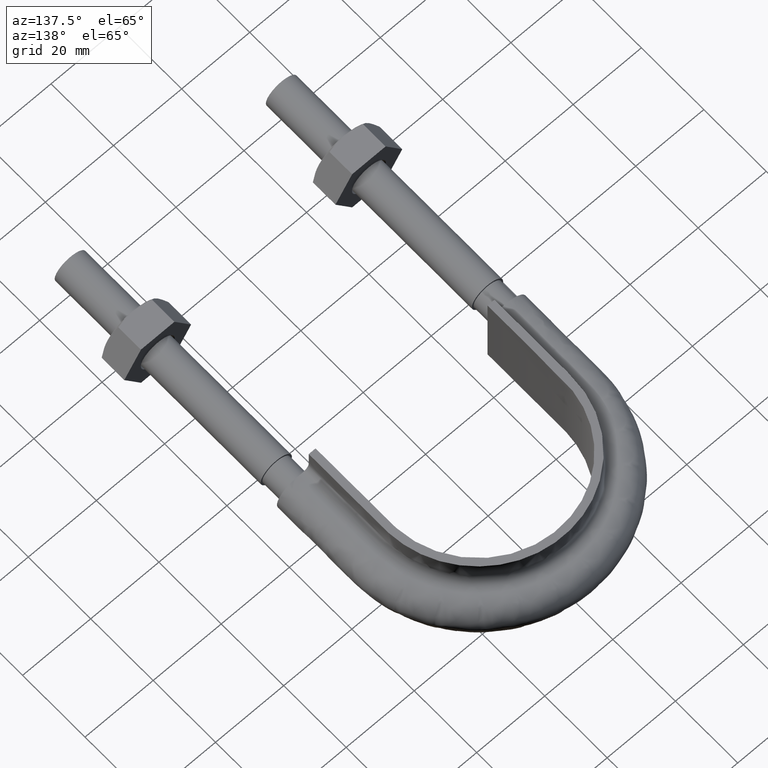
[diagram: clean part render]
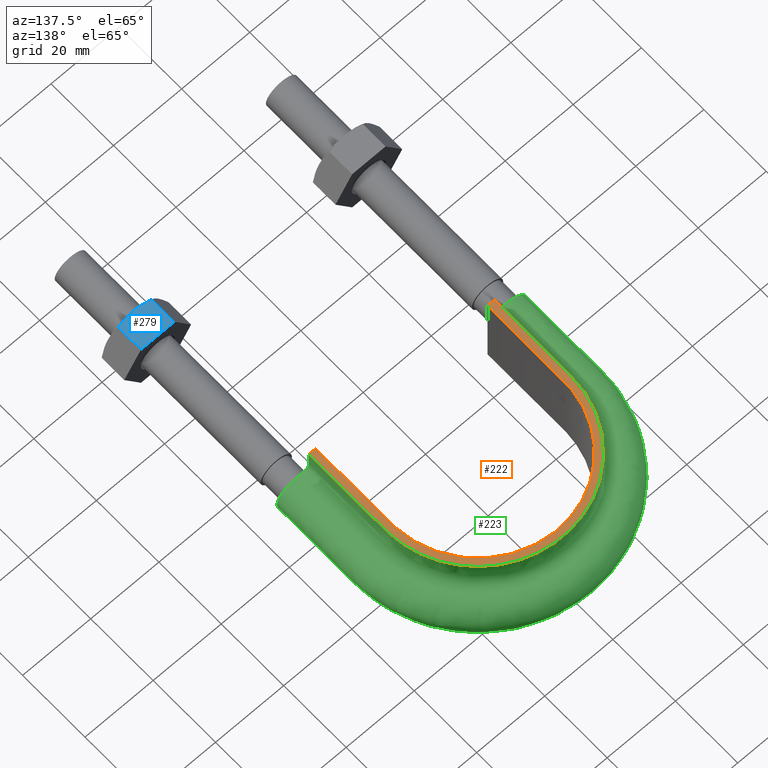
[diagram: same view with three faces highlighted in distinct colors, each labeled with its STEP entity id]
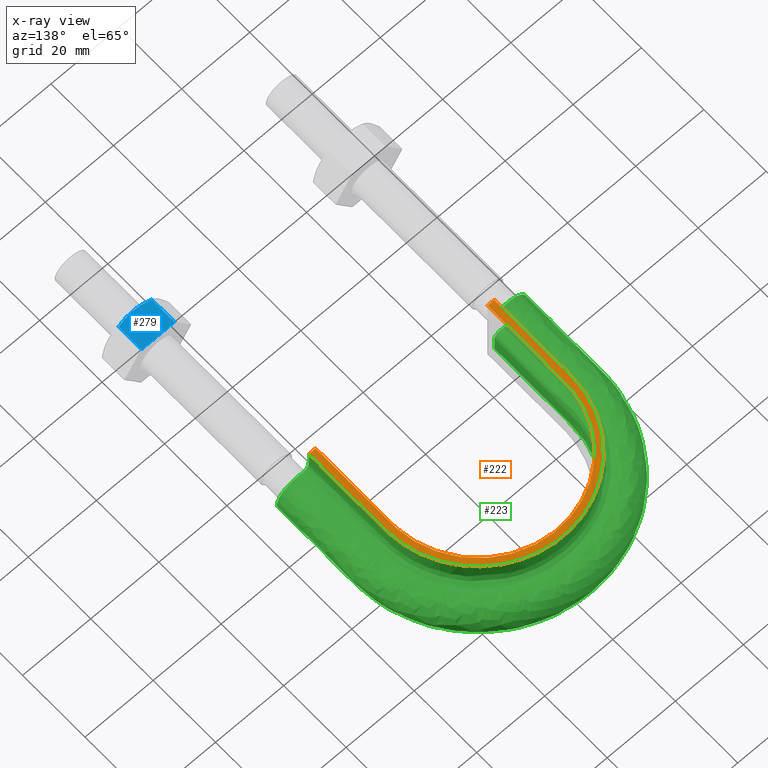
[diagram: x-ray of the same camera — body ghosted, the three highlighted faces saturated]
A machine part, auxiliary view with three faces highlighted in distinct colors.
The next image is the same camera in x-ray (body ghosted, the three faces saturated) — at least one of them is partly hidden behind the body in this view.
Their STEP definitions:

[orange] entity #222 — the highlighted planar face has unit normal (0, 0, 1).
#222 = ADVANCED_FACE( '', ( #301 ), #302, .T. );
#301 = FACE_OUTER_BOUND( '', #469, .T. );
#302 = PLANE( '', #470 );
#469 = EDGE_LOOP( '', ( #1341, #1342, #1343, #1344 ) );
#470 = AXIS2_PLACEMENT_3D( '', #1345, #1346, #1347 );
#1341 = ORIENTED_EDGE( '', *, *, #1840, .T. );
#1342 = ORIENTED_EDGE( '', *, *, #1848, .F. );
#1343 = ORIENTED_EDGE( '', *, *, #1843, .T. );
#1344 = ORIENTED_EDGE( '', *, *, #1849, .T. );
#1345 = CARTESIAN_POINT( '', ( 40.0000000000000, 142.300000000000, 12.5000000000000 ) );
#1346 = DIRECTION( '', ( 0.000000000000000, 0.000000000000000, 1.00000000000000 ) );
#1347 = DIRECTION( '', ( 1.22460635382238E-016, 1.00000000000000, 0.000000000000000 ) );
#1840 = EDGE_CURVE( '', #1992, #1989, #1993, .T. );
#1843 = EDGE_CURVE( '', #1997, #1998, #1999, .T. );
#1848 = EDGE_CURVE( '', #1997, #1989, #2006, .T. );
#1849 = EDGE_CURVE( '', #1998, #1992, #2007, .F. );
#1989 = VERTEX_POINT( '', #2235 );
#1992 = VERTEX_POINT( '', #2239 );
#1993 = LINE( '', #2240, #2241 );
#1997 = VERTEX_POINT( '', #2276 );
#1998 = VERTEX_POINT( '', #2277 );
#1999 = LINE( '', #2278, #2279 );
#2006 = B_SPLINE_CURVE_WITH_KNOTS( '', 3, ( #2334, #2335, #2336, #2337, #2338, #2339, #2340, #2341, #2342, #2343, #2344, #2345, #2346, #2347, #2348, #2349, #2350, #2351, #2352, #2353, #2354, #2355, #2356, #2357, #2358, #2359, #2360, #2361, #2362, #2363, #2364, #2365, #2366, #2367, #2368, #2369, #2370, #2371, #2372, #2373, #2374, #2375, #2376, #2377, #2378, #2379, #2380, #2381, #2382, #2383, #2384, #2385, #2386, #2387, #2388, #2389, #2390, #2391, #2392, #2393, #2394, #2395, #2396, #2397, #2398, #2399, #2400, #2401, #2402, #2403 ), .UNSPECIFIED., .F., .F., ( 4, 1, 2, 2, 2, 2, 2, 2, 2, 2, 2, 2, 2, 2, 2, 2, 2, 2, 2, 2, 2, 2, 2, 2, 2, 2, 2, 2, 2, 2, 2, 2, 2, 2, 1, 4 ), ( 0.000000000000000, 0.0161147613349207, 0.0241721420023810, 0.0251793145858135, 0.0261864871692461, 0.0282008323361112, 0.0322295226698414, 0.0342438678367065, 0.0362582130035717, 0.0402869033373018, 0.0423012485041670, 0.0443155936710321, 0.0483442840047622, 0.0503586291716273, 0.0523729743384924, 0.0564016646722226, 0.0584160098390877, 0.0604303550059528, 0.0644590453396830, 0.0684877356734133, 0.0725164260071435, 0.0765451163408737, 0.0785594615077388, 0.0805738066746039, 0.0846024970083341, 0.0866168421751992, 0.0886311873420643, 0.0926598776757946, 0.0946742228426597, 0.0966885680095249, 0.100717258343255, 0.102731603510120, 0.103738776093553, 0.104745948676985, 0.112803329344446, 0.128918090679367 ), .UNSPECIFIED. );
#2007 = B_SPLINE_CURVE_WITH_KNOTS( '', 3, ( #2404, #2405, #2406, #2407, #2408, #2409, #2410, #2411, #2412, #2413, #2414, #2415, #2416, #2417, #2418, #2419, #2420 ), .UNSPECIFIED., .F., .F., ( 4, 3, 1, 1, 1, 1, 1, 1, 1, 3, 4 ), ( 0.0977859778597787, 1.00000000000000, 1.50000000000000, 2.00000000000000, 3.00000000000000, 4.00000000000000, 5.00000000000000, 6.00000000000000, 6.50000000000000, 7.00000000000000, 7.90221402214022 ), .UNSPECIFIED. );
#2235 = CARTESIAN_POINT( '', ( -25.2500000000000, 72.3000000000000, 12.5000000000000 ) );
#2239 = CARTESIAN_POINT( '', ( -27.2500000000000, 72.3000000000000, 12.5000000000000 ) );
#2240 = CARTESIAN_POINT( '', ( -39.9999999999999, 72.3000000000000, 12.5000000000000 ) );
#2241 = VECTOR( '', #2879, 1000.00000000000 );
#2276 = CARTESIAN_POINT( '', ( 25.2500000000000, 72.3000000000000, 12.5000000000000 ) );
#2277 = CARTESIAN_POINT( '', ( 27.2500000000000, 72.3000000000000, 12.5000000000000 ) );
#2278 = CARTESIAN_POINT( '', ( -39.9999999999999, 72.3000000000000, 12.5000000000000 ) );
#2279 = VECTOR( '', #2881, 1000.00000000000 );
#2334 = CARTESIAN_POINT( '', ( 25.2500000000000, 72.3000000000000, 12.5000000000000 ) );
#2335 = CARTESIAN_POINT( '', ( 25.2500000000000, 77.6715895133363, 12.5000000000000 ) );
#2336 = CARTESIAN_POINT( '', ( 25.2500000000000, 85.7289737833406, 12.5000000000000 ) );
#2337 = CARTESIAN_POINT( '', ( 25.2500000000000, 93.7863580533451, 12.5000000000000 ) );
#2338 = CARTESIAN_POINT( '', ( 25.2500000000000, 96.8078771545967, 12.5000000000000 ) );
#2339 = CARTESIAN_POINT( '', ( 25.2491150649023, 97.1436006623561, 12.5000000000000 ) );
#2340 = CARTESIAN_POINT( '', ( 25.2290970638442, 97.8150304218350, 12.5000000000000 ) );
#2341 = CARTESIAN_POINT( '', ( 25.2121935151836, 98.1507925719534, 12.5000000000000 ) );
#2342 = CARTESIAN_POINT( '', ( 25.1416304541618, 99.1523366022387, 12.5000000000000 ) );
#2343 = CARTESIAN_POINT( '', ( 25.0681478926232, 99.8143363579043, 12.5000000000000 ) );
#2344 = CARTESIAN_POINT( '', ( 24.7718338888331, 101.783991218341, 12.5000000000000 ) );
#2345 = CARTESIAN_POINT( '', ( 24.4738662146173, 103.075459204298, 12.5000000000000 ) );
#2346 = CARTESIAN_POINT( '', ( 23.8748800577902, 104.979907306621, 12.5000000000000 ) );
#2347 = CARTESIAN_POINT( '', ( 23.6493715092706, 105.610080322054, 12.5000000000000 ) );
#2348 = CARTESIAN_POINT( '', ( 23.1466852002289, 106.855427933275, 12.5000000000000 ) );
#2349 = CARTESIAN_POINT( '', ( 22.8722634989541, 107.463960740497, 12.5000000000000 ) );
#2350 = CARTESIAN_POINT( '', ( 21.9809247319282, 109.247848149257, 12.5000000000000 ) );
#2351 = CARTESIAN_POINT( '', ( 21.2954434150302, 110.381191138223, 12.5000000000000 ) );
#2352 = CARTESIAN_POINT( '', ( 20.1327216169349, 111.998793076512, 12.5000000000000 ) );
#2353 = CARTESIAN_POINT( '', ( 19.7227502870593, 112.524270087375, 12.5000000000000 ) );
#2354 = CARTESIAN_POINT( '', ( 18.8572951167686, 113.547337069895, 12.5000000000000 ) );
#2355 = CARTESIAN_POINT( '', ( 18.4032128723607, 114.042904154068, 12.5000000000000 ) );
#2356 = CARTESIAN_POINT( '', ( 16.9964012871806, 115.462843239253, 12.5000000000000 ) );
#2357 = CARTESIAN_POINT( '', ( 15.9927974475020, 116.329082564279, 12.5000000000000 ) );
#2358 = CARTESIAN_POINT( '', ( 14.3887252075774, 117.507773024274, 12.5000000000000 ) );
#2359 = CARTESIAN_POINT( '', ( 13.8374893035044, 117.880435213656, 12.5000000000000 ) );
#2360 = CARTESIAN_POINT( '', ( 12.7006376573712, 118.583713251960, 12.5000000000000 ) );
#2361 = CARTESIAN_POINT( '', ( 12.1131960831802, 118.914825635327, 12.5000000000000 ) );
#2362 = CARTESIAN_POINT( '', ( 10.3299183650717, 119.827155647453, 12.5000000000000 ) );
#2363 = CARTESIAN_POINT( '', ( 9.10454318132638, 120.334617775915, 12.5000000000000 ) );
#2364 = CARTESIAN_POINT( '', ( 7.21408375439685, 120.951263101214, 12.5000000000000 ) );
#2365 = CARTESIAN_POINT( '', ( 6.57514143236496, 121.132564627325, 12.5000000000000 ) );
#2366 = CARTESIAN_POINT( '', ( 5.27940659805714, 121.445923942251, 12.5000000000000 ) );
#2367 = CARTESIAN_POINT( '', ( 4.61971700823954, 121.578396874576, 12.5000000000000 ) );
#2368 = CARTESIAN_POINT( '', ( 2.63611969315325, 121.895445145226, 12.5000000000000 ) );
#2369 = CARTESIAN_POINT( '', ( 1.31266002970454, 122.000633761379, 12.5000000000000 ) );
#2370 = CARTESIAN_POINT( '', ( -1.33637517265702, 121.999360539331, 12.5000000000000 ) );
#2371 = CARTESIAN_POINT( '', ( -2.66195040312099, 121.892929555190, 12.5000000000000 ) );
#2372 = CARTESIAN_POINT( '', ( -5.31524513152494, 121.465577087233, 12.5000000000000 ) );
#2373 = CARTESIAN_POINT( '', ( -6.60804809859937, 121.150283396415, 12.5000000000000 ) );
#2374 = CARTESIAN_POINT( '', ( -9.12743285415868, 120.325787539108, 12.5000000000000 ) );
#2375 = CARTESIAN_POINT( '', ( -10.3542818357591, 119.816544006340, 12.5000000000000 ) );
#2376 = CARTESIAN_POINT( '', ( -12.1424796987351, 118.898885074879, 12.5000000000000 ) );
#2377 = CARTESIAN_POINT( '', ( -12.7280055425883, 118.567696458021, 12.5000000000000 ) );
#2378 = CARTESIAN_POINT( '', ( -13.8604800842026, 117.865257648250, 12.5000000000000 ) );
#2379 = CARTESIAN_POINT( '', ( -14.4101186139773, 117.492857299479, 12.5000000000000 ) );
#2380 = CARTESIAN_POINT( '', ( -16.0108457131090, 116.314164980746, 12.5000000000000 ) );
#2381 = CARTESIAN_POINT( '', ( -17.0141423168656, 115.446887726444, 12.5000000000000 ) );
#2382 = CARTESIAN_POINT( '', ( -18.4223735858236, 114.022559707445, 12.5000000000000 ) );
#2383 = CARTESIAN_POINT( '', ( -18.8770948955632, 113.525040411561, 12.5000000000000 ) );
#2384 = CARTESIAN_POINT( '', ( -19.7389494790014, 112.503964569989, 12.5000000000000 ) );
#2385 = CARTESIAN_POINT( '', ( -20.1475791510492, 111.979175524484, 12.5000000000000 ) );
#2386 = CARTESIAN_POINT( '', ( -21.3073074555425, 110.362522952702, 12.5000000000000 ) );
#2387 = CARTESIAN_POINT( '', ( -21.9921630158331, 109.228321351915, 12.5000000000000 ) );
#2388 = CARTESIAN_POINT( '', ( -22.8834304923140, 107.440086844545, 12.5000000000000 ) );
#2389 = CARTESIAN_POINT( '', ( -23.1588924008411, 106.827230115232, 12.5000000000000 ) );
#2390 = CARTESIAN_POINT( '', ( -23.6592299459395, 105.583521009806, 12.5000000000000 ) );
#2391 = CARTESIAN_POINT( '', ( -23.8832275832711, 104.955476341357, 12.5000000000000 ) );
#2392 = CARTESIAN_POINT( '', ( -24.4794340907129, 103.053416991487, 12.5000000000000 ) );
#2393 = CARTESIAN_POINT( '', ( -24.7765070779004, 101.761630829870, 12.5000000000000 ) );
#2394 = CARTESIAN_POINT( '', ( -25.0713912401283, 99.7883013507101, 12.5000000000000 ) );
#2395 = CARTESIAN_POINT( '', ( -25.1443839992401, 99.1245403228044, 12.5000000000000 ) );
#2396 = CARTESIAN_POINT( '', ( -25.2139758381743, 98.1194620904531, 12.5000000000000 ) );
#2397 = CARTESIAN_POINT( '', ( -25.2304218529115, 97.7839664637430, 12.5000000000000 ) );
#2398 = CARTESIAN_POINT( '', ( -25.2495794061181, 97.1133743490591, 12.5000000000000 ) );
#2399 = CARTESIAN_POINT( '', ( -25.2500000000000, 96.7780593381652, 12.5000000000000 ) );
#2400 = CARTESIAN_POINT( '', ( -25.2500000000000, 93.7602164060627, 12.5000000000000 ) );
#2401 = CARTESIAN_POINT( '', ( -25.2500000000000, 85.7126352537892, 12.5000000000000 ) );
#2402 = CARTESIAN_POINT( '', ( -25.2500000000000, 77.6650541015157, 12.5000000000000 ) );
#2403 = CARTESIAN_POINT( '', ( -25.2500000000000, 72.3000000000000, 12.5000000000000 ) );
#2404 = CARTESIAN_POINT( '', ( -27.2500000000000, 72.3000000000000, 12.5000000000000 ) );
#2405 = CARTESIAN_POINT( '', ( -27.2500000000000, 80.4500000000000, 12.5000000000000 ) );
#2406 = CARTESIAN_POINT( '', ( -27.2500000000000, 88.6000000000000, 12.5000000000000 ) );
#2407 = CARTESIAN_POINT( '', ( -27.2500000000000, 96.7500000000000, 12.5000000000000 ) );
#2408 = CARTESIAN_POINT( '', ( -27.2500000000000, 99.1191567773597, 12.5000000000000 ) );
#2409 = CARTESIAN_POINT( '', ( -26.6117168448872, 103.884129206973, 12.5000000000000 ) );
#2410 = CARTESIAN_POINT( '', ( -22.9630708598582, 112.750147879515, 12.5000000000000 ) );
#2411 = CARTESIAN_POINT( '', ( -14.2616618337290, 121.453023049496, 12.5000000000000 ) );
#2412 = CARTESIAN_POINT( '', ( 2.27136457681302E-014, 125.273488475252, 12.5000000000000 ) );
#2413 = CARTESIAN_POINT( '', ( 14.2616618337290, 121.453023049496, 12.5000000000000 ) );
#2414 = CARTESIAN_POINT( '', ( 22.9630708598583, 112.750147879515, 12.5000000000000 ) );
#2415 = CARTESIAN_POINT( '', ( 26.6117168448872, 103.884129206973, 12.5000000000000 ) );
#2416 = CARTESIAN_POINT( '', ( 27.2500000000000, 99.1191567773597, 12.5000000000000 ) );
#2417 = CARTESIAN_POINT( '', ( 27.2500000000000, 96.7500000000000, 12.5000000000000 ) );
#2418 = CARTESIAN_POINT( '', ( 27.2500000000000, 88.6000000000000, 12.5000000000000 ) );
#2419 = CARTESIAN_POINT( '', ( 27.2500000000000, 80.4500000000000, 12.5000000000000 ) );
#2420 = CARTESIAN_POINT( '', ( 27.2500000000000, 72.3000000000000, 12.5000000000000 ) );
#2879 = DIRECTION( '', ( 1.00000000000000, -1.22460635382238E-016, 0.000000000000000 ) );
#2881 = DIRECTION( '', ( 1.00000000000000, -1.22460635382238E-016, 0.000000000000000 ) );

[blue] entity #279 — the highlighted planar face has unit normal (0, 0, -1).
#279 = ADVANCED_FACE( '', ( #429 ), #430, .F. );
#429 = FACE_OUTER_BOUND( '', #1272, .T. );
#430 = PLANE( '', #1273 );
#1272 = EDGE_LOOP( '', ( #1736, #1737, #1738, #1739, #1740 ) );
#1273 = AXIS2_PLACEMENT_3D( '', #1741, #1742, #1743 );
#1736 = ORIENTED_EDGE( '', *, *, #1968, .F. );
#1737 = ORIENTED_EDGE( '', *, *, #1973, .F. );
#1738 = ORIENTED_EDGE( '', *, *, #1967, .F. );
#1739 = ORIENTED_EDGE( '', *, *, #1964, .F. );
#1740 = ORIENTED_EDGE( '', *, *, #1974, .F. );
#1741 = CARTESIAN_POINT( '', ( 26.0925227118882, 28.0000000000000, 8.50000000000000 ) );
#1742 = DIRECTION( '', ( 5.55111512312578E-017, 1.83690953073357E-016, -1.00000000000000 ) );
#1743 = DIRECTION( '', ( -1.00000000000000, 1.22460635382238E-016, -5.55111512312578E-017 ) );
#1964 = EDGE_CURVE( '', #2198, #2180, #2200, .T. );
#1967 = EDGE_CURVE( '', #2180, #2201, #2205, .F. );
#1968 = EDGE_CURVE( '', #2158, #2206, #2207, .T. );
#1973 = EDGE_CURVE( '', #2201, #2158, #2213, .T. );
#1974 = EDGE_CURVE( '', #2206, #2198, #2214, .T. );
#2158 = VERTEX_POINT( '', #2727 );
#2180 = VERTEX_POINT( '', #2764 );
#2198 = VERTEX_POINT( '', #2786 );
#2200 = LINE( '', #2788, #2789 );
#2201 = VERTEX_POINT( '', #2790 );
#2205 = LINE( '', #2795, #2796 );
#2206 = VERTEX_POINT( '', #2797 );
#2207 = B_SPLINE_CURVE_WITH_KNOTS( '', 3, ( #2798, #2799, #2800, #2801, #2802, #2803, #2804, #2805 ), .UNSPECIFIED., .F., .F., ( 4, 2, 2, 4 ), ( 0.00493529902949373, 0.00616408349151779, 0.00739286795354186, 0.00985043687758998 ), .UNSPECIFIED. );
#2213 = B_SPLINE_CURVE_WITH_KNOTS( '', 3, ( #2822, #2823, #2824, #2825, #2826, #2827 ), .UNSPECIFIED., .F., .F., ( 4, 2, 4 ), ( 7.17194508345452E-007, 0.00246800811200104, 0.00493529902949373 ), .UNSPECIFIED. );
#2214 = LINE( '', #2828, #2829 );
#2727 = CARTESIAN_POINT( '', ( 31.0000000000000, 20.0000000000000, 8.50000000000000 ) );
#2764 = CARTESIAN_POINT( '', ( 35.8774993593029, 28.0000000000000, 8.50000000000000 ) );
#2786 = CARTESIAN_POINT( '', ( 26.1225006406971, 28.0000000000000, 8.50000000000000 ) );
#2788 = CARTESIAN_POINT( '', ( 26.1000000000000, 28.0000000000000, 8.50000000000000 ) );
#2789 = VECTOR( '', #3083, 1000.00000000000 );
#2790 = CARTESIAN_POINT( '', ( 35.8774993593029, 20.7505553499465, 8.50000000000000 ) );
#2795 = CARTESIAN_POINT( '', ( 35.8774993593029, 28.0000000000000, 8.50000000000000 ) );
#2796 = VECTOR( '', #3088, 1000.00000000000 );
#2797 = CARTESIAN_POINT( '', ( 26.1225006406971, 20.7505553499465, 8.50000000000000 ) );
#2798 = CARTESIAN_POINT( '', ( 31.0000000000000, 20.0000000000000, 8.50000000000000 ) );
#2799 = CARTESIAN_POINT( '', ( 30.5862903722491, 20.0000000000000, 8.50000000000000 ) );
#2800 = CARTESIAN_POINT( '', ( 30.1705131783975, 20.0177112141220, 8.50000000000000 ) );
#2801 = CARTESIAN_POINT( '', ( 29.3480009983425, 20.0863020976798, 8.50000000000000 ) );
#2802 = CARTESIAN_POINT( '', ( 28.9394788820032, 20.1371114863339, 8.50000000000000 ) );
#2803 = CARTESIAN_POINT( '', ( 27.7211323152193, 20.3331491064655, 8.50000000000000 ) );
#2804 = CARTESIAN_POINT( '', ( 26.9185008687927, 20.5218250443850, 8.50000000000000 ) );
#2805 = CARTESIAN_POINT( '', ( 26.1225006406971, 20.7505553499465, 8.50000000000000 ) );
#2822 = CARTESIAN_POINT( '', ( 35.8774993593029, 20.7505553499465, 8.50000000000000 ) );
#2823 = CARTESIAN_POINT( '', ( 35.0793958257588, 20.5212206605155, 8.50000000000000 ) );
#2824 = CARTESIAN_POINT( '', ( 34.2755276393733, 20.3324529479805, 8.50000000000000 ) );
#2825 = CARTESIAN_POINT( '', ( 32.6512367166361, 20.0714150925759, 8.50000000000000 ) );
#2826 = CARTESIAN_POINT( '', ( 31.8306924758373, 20.0000000000000, 8.50000000000000 ) );
#2827 = CARTESIAN_POINT( '', ( 31.0000000000000, 20.0000000000000, 8.50000000000000 ) );
#2828 = CARTESIAN_POINT( '', ( 26.1225006406971, 28.0000000000000, 8.50000000000000 ) );
#2829 = VECTOR( '', #3093, 1000.00000000000 );
#3083 = DIRECTION( '', ( 1.00000000000000, -1.22460635382238E-016, 5.55111512312579E-017 ) );
#3088 = DIRECTION( '', ( 1.22460635382238E-016, 1.00000000000000, 1.83690953073357E-016 ) );
#3093 = DIRECTION( '', ( 1.22460635382238E-016, 1.00000000000000, 1.83690953073357E-016 ) );

[green] entity #223 — the highlighted face is a freeform B-spline surface patch.
#223 = ADVANCED_FACE( '', ( #303 ), #304, .F. );
#303 = FACE_OUTER_BOUND( '', #471, .T. );
#304 = B_SPLINE_SURFACE_WITH_KNOTS( '', 3, 3, ( ( #472, #473, #474, #475, #476, #477, #478, #479, #480, #481, #482, #483, #484, #485, #486, #487, #488 ), ( #489, #490, #491, #492, #493, #494, #495, #496, #497, #498, #499, #500, #501, #502, #503, #504, #505 ), ( #506, #507, #508, #509, #510, #511, #512, #513, #514, #515, #516, #517, #518, #519, #520, #521, #522 ), ( #523, #524, #525, #526, #527, #528, #529, #530, #531, #532, #533, #534, #535, #536, #537, #538, #539 ), ( #540, #541, #542, #543, #544, #545, #546, #547, #548, #549, #550, #551, #552, #553, #554, #555, #556 ), ( #557, #558, #559, #560, #561, #562, #563, #564, #565, #566, #567, #568, #569, #570, #571, #572, #573 ), ( #574, #575, #576, #577, #578, #579, #580, #581, #582, #583, #584, #585, #586, #587, #588, #589, #590 ), ( #591, #592, #593, #594, #595, #596, #597, #598, #599, #600, #601, #602, #603, #604, #605, #606, #607 ), ( #608, #609, #610, #611, #612, #613, #614, #615, #616, #617, #618, #619, #620, #621, #622, #623, #624 ), ( #625, #626, #627, #628, #629, #630, #631, #632, #633, #634, #635, #636, #637, #638, #639, #640, #641 ), ( #642, #643, #644, #645, #646, #647, #648, #649, #650, #651, #652, #653, #654, #655, #656, #657, #658 ), ( #659, #660, #661, #662, #663, #664, #665, #666, #667, #668, #669, #670, #671, #672, #673, #674, #675 ), ( #676, #677, #678, #679, #680, #681, #682, #683, #684, #685, #686, #687, #688, #689, #690, #691, #692 ), ( #693, #694, #695, #696, #697, #698, #699, #700, #701, #702, #703, #704, #705, #706, #707, #708, #709 ), ( #710, #711, #712, #713, #714, #715, #716, #717, #718, #719, #720, #721, #722, #723, #724, #725, #726 ), ( #727, #728, #729, #730, #731, #732, #733, #734, #735, #736, #737, #738, #739, #740, #741, #742, #743 ), ( #744, #745, #746, #747, #748, #749, #750, #751, #752, #753, #754, #755, #756, #757, #758, #759, #760 ), ( #761, #762, #763, #764, #765, #766, #767, #768, #769, #770, #771, #772, #773, #774, #775, #776, #777 ), ( #778, #779, #780, #781, #782, #783, #784, #785, #786, #787, #788, #789, #790, #791, #792, #793, #794 ), ( #795, #796, #797, #798, #799, #800, #801, #802, #803, #804, #805, #806, #807, #808, #809, #810, #811 ), ( #812, #813, #814, #815, #816, #817, #818, #819, #820, #821, #822, #823, #824, #825, #826, #827, #828 ), ( #829, #830, #831, #832, #833, #834, #835, #836, #837, #838, #839, #840, #841, #842, #843, #844, #845 ), ( #846, #847, #848, #849, #850, #851, #852, #853, #854, #855, #856, #857, #858, #859, #860, #861, #862 ), ( #863, #864, #865, #866, #867, #868, #869, #870, #871, #872, #873, #874, #875, #876, #877, #878, #879 ), ( #880, #881, #882, #883, #884, #885, #886, #887, #888, #889, #890, #891, #892, #893, #894, #895, #896 ), ( #897, #898, #899, #900, #901, #902, #903, #904, #905, #906, #907, #908, #909, #910, #911, #912, #913 ), ( #914, #915, #916, #917, #918, #919, #920, #921, #922, #923, #924, #925, #926, #927, #928, #929, #930 ), ( #931, #932, #933, #934, #935, #936, #937, #938, #939, #940, #941, #942, #943, #944, #945, #946, #947 ), ( #948, #949, #950, #951, #952, #953, #954, #955, #956, #957, #958, #959, #960, #961, #962, #963, #964 ), ( #965, #966, #967, #968, #969, #970, #971, #972, #973, #974, #975, #976, #977, #978, #979, #980, #981 ), ( #982, #983, #984, #985, #986, #987, #988, #989, #990, #991, #992, #993, #994, #995, #996, #997, #998 ) ), .UNSPECIFIED., .F., .F., .F., ( 4, 3, 1, 1, 1, 3, 3, 1, 1, 1, 3, 3, 1, 1, 1, 3, 4 ), ( 4, 3, 1, 1, 1, 1, 1, 1, 1, 3, 4 ), ( 0.000000000000000, 0.0526315789473684, 0.105263157894737, 0.157894736842105, 0.210526315789474, 0.263157894736842, 0.315789473684211, 0.368421052631579, 0.421052631578947, 0.473684210526316, 0.526315789473684, 0.578947368421053, 0.631578947368421, 0.684210526315789, 0.736842105263158, 0.789473684210526, 0.842105263157895 ), ( 0.000000000000000, 1.00000000000000, 1.50000000000000, 2.00000000000000, 3.00000000000000, 4.00000000000000, 5.00000000000000, 6.00000000000000, 6.50000000000000, 7.00000000000000, 8.00000000000000 ), .UNSPECIFIED. );
#471 = EDGE_LOOP( '', ( #1348, #1349, #1350, #1351 ) );
#472 = CARTESIAN_POINT( '', ( -27.2500000000000, 69.6500000000000, 12.5000000000000 ) );
#473 = CARTESIAN_POINT( '', ( -27.2500000000000, 78.6833333333333, 12.5000000000000 ) );
#474 = CARTESIAN_POINT( '', ( -27.2500000000000, 87.7166666666667, 12.5000000000000 ) );
#475 = CARTESIAN_POINT( '', ( -27.2500000000000, 96.7500000000000, 12.5000000000000 ) );
#476 = CARTESIAN_POINT( '', ( -27.2500000000000, 99.1191567773597, 12.5000000000000 ) );
#477 = CARTESIAN_POINT( '', ( -26.6117168448872, 103.884129206973, 12.5000000000000 ) );
#478 = CARTESIAN_POINT( '', ( -22.9630708598582, 112.750147879515, 12.5000000000000 ) );
#479 = CARTESIAN_POINT( '', ( -14.2616618337290, 121.453023049496, 12.5000000000000 ) );
#480 = CARTESIAN_POINT( '', ( 2.27136457681302E-014, 125.273488475252, 12.5000000000000 ) );
#481 = CARTESIAN_POINT( '', ( 14.2616618337290, 121.453023049496, 12.5000000000000 ) );
#482 = CARTESIAN_POINT( '', ( 22.9630708598583, 112.750147879515, 12.5000000000000 ) );
#483 = CARTESIAN_POINT( '', ( 26.6117168448872, 103.884129206973, 12.5000000000000 ) );
#484 = CARTESIAN_POINT( '', ( 27.2500000000000, 99.1191567773597, 12.5000000000000 ) );
#485 = CARTESIAN_POINT( '', ( 27.2500000000000, 96.7500000000000, 12.5000000000000 ) );
#486 = CARTESIAN_POINT( '', ( 27.2500000000000, 87.7166666666667, 12.5000000000000 ) );
#487 = CARTESIAN_POINT( '', ( 27.2500000000000, 78.6833333333333, 12.5000000000000 ) );
#488 = CARTESIAN_POINT( '', ( 27.2500000000000, 69.6500000000000, 12.5000000000000 ) );
#489 = CARTESIAN_POINT( '', ( -27.2500000000000, 69.6500000000000, 10.8666666666667 ) );
#490 = CARTESIAN_POINT( '', ( -27.2500000000000, 78.6833333333333, 10.8666666666667 ) );
#491 = CARTESIAN_POINT( '', ( -27.2500000000000, 87.7166666666667, 10.8666666666667 ) );
#492 = CARTESIAN_POINT( '', ( -27.2500000000000, 96.7500000000000, 10.8666666666667 ) );
#493 = CARTESIAN_POINT( '', ( -27.2500000000000, 99.1191567773597, 10.8666666666667 ) );
#494 = CARTESIAN_POINT( '', ( -26.6117168448872, 103.884129206973, 10.8666666666667 ) );
#495 = CARTESIAN_POINT( '', ( -22.9630708598582, 112.750147879515, 10.8666666666667 ) );
#496 = CARTESIAN_POINT( '', ( -14.2616618337290, 121.453023049496, 10.8666666666667 ) );
#497 = CARTESIAN_POINT( '', ( 2.27136457681302E-014, 125.273488475252, 10.8666666666667 ) );
#498 = CARTESIAN_POINT( '', ( 14.2616618337290, 121.453023049496, 10.8666666666667 ) );
#499 = CARTESIAN_POINT( '', ( 22.9630708598583, 112.750147879515, 10.8666666666667 ) );
#500 = CARTESIAN_POINT( '', ( 26.6117168448872, 103.884129206973, 10.8666666666667 ) );
#501 = CARTESIAN_POINT( '', ( 27.2500000000000, 99.1191567773597, 10.8666666666667 ) );
#502 = CARTESIAN_POINT( '', ( 27.2500000000000, 96.7500000000000, 10.8666666666667 ) );
#503 = CARTESIAN_POINT( '', ( 27.2500000000000, 87.7166666666667, 10.8666666666667 ) );
#504 = CARTESIAN_POINT( '', ( 27.2500000000000, 78.6833333333333, 10.8666666666667 ) );
#505 = CARTESIAN_POINT( '', ( 27.2500000000000, 69.6500000000000, 10.8666666666667 ) );
#506 = CARTESIAN_POINT( '', ( -27.2500000000000, 69.6500000000000, 9.23333333333333 ) );
#507 = CARTESIAN_POINT( '', ( -27.2500000000000, 78.6833333333333, 9.23333333333333 ) );
#508 = CARTESIAN_POINT( '', ( -27.2500000000000, 87.7166666666667, 9.23333333333333 ) );
#509 = CARTESIAN_POINT( '', ( -27.2500000000000, 96.7500000000000, 9.23333333333333 ) );
#510 = CARTESIAN_POINT( '', ( -27.2500000000000, 99.1191567773597, 9.23333333333333 ) );
#511 = CARTESIAN_POINT( '', ( -26.6117168448872, 103.884129206973, 9.23333333333332 ) );
#512 = CARTESIAN_POINT( '', ( -22.9630708598582, 112.750147879515, 9.23333333333335 ) );
#513 = CARTESIAN_POINT( '', ( -14.2616618337290, 121.453023049496, 9.23333333333332 ) );
#514 = CARTESIAN_POINT( '', ( 2.31473266371244E-014, 125.273488475252, 9.23333333333334 ) );
#515 = CARTESIAN_POINT( '', ( 14.2616618337290, 121.453023049496, 9.23333333333332 ) );
#516 = CARTESIAN_POINT( '', ( 22.9630708598583, 112.750147879515, 9.23333333333334 ) );
#517 = CARTESIAN_POINT( '', ( 26.6117168448872, 103.884129206973, 9.23333333333333 ) );
#518 = CARTESIAN_POINT( '', ( 27.2500000000000, 99.1191567773597, 9.23333333333333 ) );
#519 = CARTESIAN_POINT( '', ( 27.2500000000000, 96.7500000000000, 9.23333333333333 ) );
#520 = CARTESIAN_POINT( '', ( 27.2500000000000, 87.7166666666667, 9.23333333333333 ) );
#521 = CARTESIAN_POINT( '', ( 27.2500000000000, 78.6833333333333, 9.23333333333333 ) );
#522 = CARTESIAN_POINT( '', ( 27.2500000000000, 69.6500000000000, 9.23333333333333 ) );
#523 = CARTESIAN_POINT( '', ( -27.2500000000000, 69.6500000000000, 7.59999999999999 ) );
#524 = CARTESIAN_POINT( '', ( -27.2500000000000, 78.6833333333333, 7.59999999999999 ) );
#525 = CARTESIAN_POINT( '', ( -27.2500000000000, 87.7166666666667, 7.59999999999999 ) );
#526 = CARTESIAN_POINT( '', ( -27.2500000000000, 96.7500000000000, 7.59999999999999 ) );
#527 = CARTESIAN_POINT( '', ( -27.2500000000000, 99.1191567773597, 7.60000000000000 ) );
#528 = CARTESIAN_POINT( '', ( -26.6117168448872, 103.884129206973, 7.59999999999998 ) );
#529 = CARTESIAN_POINT( '', ( -22.9630708598582, 112.750147879515, 7.60000000000001 ) );
#530 = CARTESIAN_POINT( '', ( -14.2616618337290, 121.453023049496, 7.59999999999999 ) );
#531 = CARTESIAN_POINT( '', ( 2.48820501131012E-014, 125.273488475252, 7.60000000000000 ) );
#532 = CARTESIAN_POINT( '', ( 14.2616618337290, 121.453023049496, 7.59999999999999 ) );
#533 = CARTESIAN_POINT( '', ( 22.9630708598583, 112.750147879515, 7.60000000000000 ) );
#534 = CARTESIAN_POINT( '', ( 26.6117168448872, 103.884129206973, 7.59999999999999 ) );
#535 = CARTESIAN_POINT( '', ( 27.2500000000000, 99.1191567773597, 7.60000000000000 ) );
#536 = CARTESIAN_POINT( '', ( 27.2500000000000, 96.7500000000000, 7.60000000000000 ) );
#537 = CARTESIAN_POINT( '', ( 27.2500000000000, 87.7166666666667, 7.59999999999999 ) );
#538 = CARTESIAN_POINT( '', ( 27.2500000000000, 78.6833333333333, 7.59999999999999 ) );
#539 = CARTESIAN_POINT( '', ( 27.2500000000000, 69.6500000000000, 7.59999999999999 ) );
#540 = CARTESIAN_POINT( '', ( -27.2500000000000, 69.6500000000000, 7.33823584172332 ) );
#541 = CARTESIAN_POINT( '', ( -27.2500000000000, 78.6833333333333, 7.33823584172332 ) );
#542 = CARTESIAN_POINT( '', ( -27.2500000000000, 87.7166666666667, 7.33823584172332 ) );
#543 = CARTESIAN_POINT( '', ( -27.2500000000000, 96.7500000000000, 7.33823584172332 ) );
#544 = CARTESIAN_POINT( '', ( -27.2500000000000, 99.1191567773597, 7.33823584172333 ) );
#545 = CARTESIAN_POINT( '', ( -26.6117168448872, 103.884129206973, 7.33823584172332 ) );
#546 = CARTESIAN_POINT( '', ( -22.9630708598582, 112.750147879515, 7.33823584172334 ) );
#547 = CARTESIAN_POINT( '', ( -14.2616618337290, 121.453023049496, 7.33823584172332 ) );
#548 = CARTESIAN_POINT( '', ( 2.18462840301418E-014, 125.273488475252, 7.33823584172333 ) );
#549 = CARTESIAN_POINT( '', ( 14.2616618337290, 121.453023049496, 7.33823584172332 ) );
#550 = CARTESIAN_POINT( '', ( 22.9630708598583, 112.750147879515, 7.33823584172333 ) );
#551 = CARTESIAN_POINT( '', ( 26.6117168448872, 103.884129206973, 7.33823584172332 ) );
#552 = CARTESIAN_POINT( '', ( 27.2500000000000, 99.1191567773597, 7.33823584172333 ) );
#553 = CARTESIAN_POINT( '', ( 27.2500000000000, 96.7500000000000, 7.33823584172333 ) );
#554 = CARTESIAN_POINT( '', ( 27.2500000000000, 87.7166666666667, 7.33823584172332 ) );
#555 = CARTESIAN_POINT( '', ( 27.2500000000000, 78.6833333333333, 7.33823584172332 ) );
#556 = CARTESIAN_POINT( '', ( 27.2500000000000, 69.6500000000000, 7.33823584172332 ) );
#557 = CARTESIAN_POINT( '', ( -27.3541362568359, 69.6500000000000, 6.81470752517000 ) );
#558 = CARTESIAN_POINT( '', ( -27.3541362568359, 78.6833333333333, 6.81470752517000 ) );
#559 = CARTESIAN_POINT( '', ( -27.3541362568359, 87.7166666666667, 6.81470752517000 ) );
#560 = CARTESIAN_POINT( '', ( -27.3541362568359, 96.7500000000000, 6.81470752517000 ) );
#561 = CARTESIAN_POINT( '', ( -27.3541362568359, 99.1284578526671, 6.81470752517000 ) );
#562 = CARTESIAN_POINT( '', ( -26.7134572332448, 103.911292124777, 6.81470752516999 ) );
#563 = CARTESIAN_POINT( '', ( -23.0507996038451, 112.811350712320, 6.81470752517001 ) );
#564 = CARTESIAN_POINT( '', ( -14.3161708541825, 121.547404891505, 6.81470752516999 ) );
#565 = CARTESIAN_POINT( '', ( 2.40280382332100E-014, 125.382501939501, 6.81470752517001 ) );
#566 = CARTESIAN_POINT( '', ( 14.3161708541825, 121.547404891505, 6.81470752516999 ) );
#567 = CARTESIAN_POINT( '', ( 23.0507996038452, 112.811350712320, 6.81470752517000 ) );
#568 = CARTESIAN_POINT( '', ( 26.7134572332449, 103.911292124777, 6.81470752516999 ) );
#569 = CARTESIAN_POINT( '', ( 27.3541362568359, 99.1284578526671, 6.81470752517000 ) );
#570 = CARTESIAN_POINT( '', ( 27.3541362568359, 96.7500000000000, 6.81470752517000 ) );
#571 = CARTESIAN_POINT( '', ( 27.3541362568359, 87.7166666666667, 6.81470752517000 ) );
#572 = CARTESIAN_POINT( '', ( 27.3541362568359, 78.6833333333333, 6.81470752517000 ) );
#573 = CARTESIAN_POINT( '', ( 27.3541362568359, 69.6500000000000, 6.81470752517000 ) );
#574 = CARTESIAN_POINT( '', ( -27.7989687109389, 69.6500000000000, 6.14896871093887 ) );
#575 = CARTESIAN_POINT( '', ( -27.7989687109389, 78.6833333333333, 6.14896871093887 ) );
#576 = CARTESIAN_POINT( '', ( -27.7989687109389, 87.7166666666667, 6.14896871093887 ) );
#577 = CARTESIAN_POINT( '', ( -27.7989687109389, 96.7500000000000, 6.14896871093887 ) );
#578 = CARTESIAN_POINT( '', ( -27.7989687109389, 99.1681886849484, 6.14896871093887 ) );
#579 = CARTESIAN_POINT( '', ( -27.1480554030815, 104.027322292890, 6.14896871093886 ) );
#580 = CARTESIAN_POINT( '', ( -23.4255450927726, 113.072787095206, 6.14896871093888 ) );
#581 = CARTESIAN_POINT( '', ( -14.5490136898656, 121.950570010738, 6.14896871093886 ) );
#582 = CARTESIAN_POINT( '', ( 2.36513831333353E-014, 125.848168061039, 6.14896871093887 ) );
#583 = CARTESIAN_POINT( '', ( 14.5490136898657, 121.950570010738, 6.14896871093886 ) );
#584 = CARTESIAN_POINT( '', ( 23.4255450927727, 113.072787095206, 6.14896871093887 ) );
#585 = CARTESIAN_POINT( '', ( 27.1480554030816, 104.027322292890, 6.14896871093886 ) );
#586 = CARTESIAN_POINT( '', ( 27.7989687109389, 99.1681886849484, 6.14896871093887 ) );
#587 = CARTESIAN_POINT( '', ( 27.7989687109389, 96.7500000000000, 6.14896871093887 ) );
#588 = CARTESIAN_POINT( '', ( 27.7989687109389, 87.7166666666667, 6.14896871093887 ) );
#589 = CARTESIAN_POINT( '', ( 27.7989687109389, 78.6833333333333, 6.14896871093887 ) );
#590 = CARTESIAN_POINT( '', ( 27.7989687109389, 69.6500000000000, 6.14896871093887 ) );
#591 = CARTESIAN_POINT( '', ( -28.4647075251700, 69.6500000000000, 5.70413625683590 ) );
#592 = CARTESIAN_POINT( '', ( -28.4647075251700, 78.6833333333333, 5.70413625683590 ) );
#593 = CARTESIAN_POINT( '', ( -28.4647075251700, 87.7166666666667, 5.70413625683590 ) );
#594 = CARTESIAN_POINT( '', ( -28.4647075251700, 96.7500000000000, 5.70413625683590 ) );
#595 = CARTESIAN_POINT( '', ( -28.4647075251700, 99.2276500774962, 5.70413625683590 ) );
#596 = CARTESIAN_POINT( '', ( -27.7984775285030, 104.200973711130, 5.70413625683589 ) );
#597 = CARTESIAN_POINT( '', ( -23.9863913510345, 113.464054292404, 5.70413625683591 ) );
#598 = CARTESIAN_POINT( '', ( -14.8974876195444, 122.553949251487, 5.70413625683589 ) );
#599 = CARTESIAN_POINT( '', ( 2.33030473590259E-014, 126.545086662011, 5.70413625683590 ) );
#600 = CARTESIAN_POINT( '', ( 14.8974876195444, 122.553949251487, 5.70413625683589 ) );
#601 = CARTESIAN_POINT( '', ( 23.9863913510345, 113.464054292404, 5.70413625683590 ) );
#602 = CARTESIAN_POINT( '', ( 27.7984775285030, 104.200973711130, 5.70413625683589 ) );
#603 = CARTESIAN_POINT( '', ( 28.4647075251700, 99.2276500774962, 5.70413625683590 ) );
#604 = CARTESIAN_POINT( '', ( 28.4647075251700, 96.7500000000000, 5.70413625683590 ) );
#605 = CARTESIAN_POINT( '', ( 28.4647075251700, 87.7166666666667, 5.70413625683590 ) );
#606 = CARTESIAN_POINT( '', ( 28.4647075251700, 78.6833333333333, 5.70413625683590 ) );
#607 = CARTESIAN_POINT( '', ( 28.4647075251700, 69.6500000000000, 5.70413625683590 ) );
#608 = CARTESIAN_POINT( '', ( -28.9882358417233, 69.6500000000000, 5.59999999999999 ) );
#609 = CARTESIAN_POINT( '', ( -28.9882358417233, 78.6833333333333, 5.59999999999999 ) );
#610 = CARTESIAN_POINT( '', ( -28.9882358417233, 87.7166666666667, 5.59999999999999 ) );
#611 = CARTESIAN_POINT( '', ( -28.9882358417233, 96.7500000000000, 5.59999999999999 ) );
#612 = CARTESIAN_POINT( '', ( -28.9882358417233, 99.2744097407079, 5.59999999999999 ) );
#613 = CARTESIAN_POINT( '', ( -28.3099610008377, 104.337530920527, 5.59999999999998 ) );
#614 = CARTESIAN_POINT( '', ( -24.4274335302743, 113.771741710792, 5.60000000000000 ) );
#615 = CARTESIAN_POINT( '', ( -15.1715229707476, 123.028438813159, 5.59999999999998 ) );
#616 = CARTESIAN_POINT( '', ( 2.25027998898637E-014, 127.093134356005, 5.60000000000000 ) );
#617 = CARTESIAN_POINT( '', ( 15.1715229707476, 123.028438813159, 5.59999999999998 ) );
#618 = CARTESIAN_POINT( '', ( 24.4274335302743, 113.771741710792, 5.59999999999999 ) );
#619 = CARTESIAN_POINT( '', ( 28.3099610008377, 104.337530920527, 5.59999999999999 ) );
#620 = CARTESIAN_POINT( '', ( 28.9882358417234, 99.2744097407079, 5.59999999999999 ) );
#621 = CARTESIAN_POINT( '', ( 28.9882358417234, 96.7500000000000, 5.59999999999999 ) );
#622 = CARTESIAN_POINT( '', ( 28.9882358417234, 87.7166666666667, 5.59999999999999 ) );
#623 = CARTESIAN_POINT( '', ( 28.9882358417234, 78.6833333333333, 5.59999999999999 ) );
#624 = CARTESIAN_POINT( '', ( 28.9882358417234, 69.6500000000000, 5.59999999999999 ) );
#625 = CARTESIAN_POINT( '', ( -29.2500000000000, 69.6500000000000, 5.59999999999999 ) );
#626 = CARTESIAN_POINT( '', ( -29.2500000000000, 78.6833333333333, 5.59999999999999 ) );
#627 = CARTESIAN_POINT( '', ( -29.2500000000000, 87.7166666666667, 5.59999999999999 ) );
#628 = CARTESIAN_POINT( '', ( -29.2500000000000, 96.7500000000000, 5.59999999999999 ) );
#629 = CARTESIAN_POINT( '', ( -29.2500000000000, 99.2977895723138, 5.59999999999999 ) );
#630 = CARTESIAN_POINT( '', ( -28.5657027370050, 104.405809525225, 5.59999999999998 ) );
#631 = CARTESIAN_POINT( '', ( -24.6479546198942, 113.925585419986, 5.60000000000000 ) );
#632 = CARTESIAN_POINT( '', ( -15.3085406463492, 123.265683593996, 5.59999999999998 ) );
#633 = CARTESIAN_POINT( '', ( 2.25363570242769E-014, 127.367158203002, 5.60000000000000 ) );
#634 = CARTESIAN_POINT( '', ( 15.3085406463492, 123.265683593995, 5.59999999999998 ) );
#635 = CARTESIAN_POINT( '', ( 24.6479546198943, 113.925585419986, 5.59999999999999 ) );
#636 = CARTESIAN_POINT( '', ( 28.5657027370051, 104.405809525225, 5.59999999999999 ) );
#637 = CARTESIAN_POINT( '', ( 29.2500000000000, 99.2977895723138, 5.59999999999999 ) );
#638 = CARTESIAN_POINT( '', ( 29.2500000000000, 96.7500000000000, 5.59999999999999 ) );
#639 = CARTESIAN_POINT( '', ( 29.2500000000000, 87.7166666666667, 5.59999999999999 ) );
#640 = CARTESIAN_POINT( '', ( 29.2500000000000, 78.6833333333333, 5.59999999999999 ) );
#641 = CARTESIAN_POINT( '', ( 29.2500000000000, 69.6500000000000, 5.59999999999999 ) );
#642 = CARTESIAN_POINT( '', ( -29.8333333333333, 69.6500000000000, 5.60000000000001 ) );
#643 = CARTESIAN_POINT( '', ( -29.8333333333333, 78.6833333333333, 5.60000000000001 ) );
#644 = CARTESIAN_POINT( '', ( -29.8333333333333, 87.7166666666667, 5.60000000000001 ) );
#645 = CARTESIAN_POINT( '', ( -29.8333333333333, 96.7500000000000, 5.60000000000001 ) );
#646 = CARTESIAN_POINT( '', ( -29.8333333333333, 99.3498908041754, 5.60000000000001 ) );
#647 = CARTESIAN_POINT( '', ( -29.1356152888727, 104.557966284715, 5.60000000000000 ) );
#648 = CARTESIAN_POINT( '', ( -25.1393790499047, 114.268421369291, 5.60000000000002 ) );
#649 = CARTESIAN_POINT( '', ( -15.6138803000301, 123.794376252808, 5.60000000000000 ) );
#650 = CARTESIAN_POINT( '', ( 2.26111380607763E-014, 127.977811873596, 5.60000000000001 ) );
#651 = CARTESIAN_POINT( '', ( 15.6138803000301, 123.794376252808, 5.60000000000000 ) );
#652 = CARTESIAN_POINT( '', ( 25.1393790499048, 114.268421369291, 5.60000000000001 ) );
#653 = CARTESIAN_POINT( '', ( 29.1356152888728, 104.557966284715, 5.60000000000000 ) );
#654 = CARTESIAN_POINT( '', ( 29.8333333333334, 99.3498908041754, 5.60000000000001 ) );
#655 = CARTESIAN_POINT( '', ( 29.8333333333334, 96.7500000000000, 5.60000000000001 ) );
#656 = CARTESIAN_POINT( '', ( 29.8333333333334, 87.7166666666667, 5.60000000000001 ) );
#657 = CARTESIAN_POINT( '', ( 29.8333333333334, 78.6833333333333, 5.60000000000001 ) );
#658 = CARTESIAN_POINT( '', ( 29.8333333333334, 69.6500000000000, 5.60000000000001 ) );
#659 = CARTESIAN_POINT( '', ( -30.4166666666667, 69.6500000000000, 5.60000000000001 ) );
#660 = CARTESIAN_POINT( '', ( -30.4166666666667, 78.6833333333333, 5.60000000000001 ) );
#661 = CARTESIAN_POINT( '', ( -30.4166666666667, 87.7166666666667, 5.60000000000001 ) );
#662 = CARTESIAN_POINT( '', ( -30.4166666666667, 96.7500000000000, 5.60000000000001 ) );
#663 = CARTESIAN_POINT( '', ( -30.4166666666667, 99.4019920360370, 5.60000000000001 ) );
#664 = CARTESIAN_POINT( '', ( -29.7055278407404, 104.710123044206, 5.60000000000000 ) );
#665 = CARTESIAN_POINT( '', ( -25.6308034799152, 114.611257318595, 5.60000000000002 ) );
#666 = CARTESIAN_POINT( '', ( -15.9192199537110, 124.323068911620, 5.60000000000000 ) );
#667 = CARTESIAN_POINT( '', ( 2.26859190972757E-014, 128.588465544190, 5.60000000000001 ) );
#668 = CARTESIAN_POINT( '', ( 15.9192199537110, 124.323068911620, 5.60000000000000 ) );
#669 = CARTESIAN_POINT( '', ( 25.6308034799152, 114.611257318595, 5.60000000000001 ) );
#670 = CARTESIAN_POINT( '', ( 29.7055278407404, 104.710123044206, 5.60000000000000 ) );
#671 = CARTESIAN_POINT( '', ( 30.4166666666667, 99.4019920360370, 5.60000000000001 ) );
#672 = CARTESIAN_POINT( '', ( 30.4166666666667, 96.7500000000000, 5.60000000000001 ) );
#673 = CARTESIAN_POINT( '', ( 30.4166666666667, 87.7166666666667, 5.60000000000001 ) );
#674 = CARTESIAN_POINT( '', ( 30.4166666666667, 78.6833333333333, 5.60000000000001 ) );
#675 = CARTESIAN_POINT( '', ( 30.4166666666667, 69.6500000000000, 5.60000000000001 ) );
#676 = CARTESIAN_POINT( '', ( -31.0000000000000, 69.6500000000000, 5.60000000000001 ) );
#677 = CARTESIAN_POINT( '', ( -31.0000000000000, 78.6833333333333, 5.60000000000001 ) );
#678 = CARTESIAN_POINT( '', ( -31.0000000000000, 87.7166666666667, 5.60000000000001 ) );
#679 = CARTESIAN_POINT( '', ( -31.0000000000000, 96.7500000000000, 5.60000000000001 ) );
#680 = CARTESIAN_POINT( '', ( -31.0000000000000, 99.4540932678986, 5.60000000000001 ) );
#681 = CARTESIAN_POINT( '', ( -30.2754403926081, 104.862279803696, 5.60000000000000 ) );
#682 = CARTESIAN_POINT( '', ( -26.1222279099257, 114.954093267899, 5.60000000000002 ) );
#683 = CARTESIAN_POINT( '', ( -16.2245596073919, 124.851761570432, 5.60000000000000 ) );
#684 = CARTESIAN_POINT( '', ( 2.18933383957867E-014, 129.199119214784, 5.60000000000001 ) );
#685 = CARTESIAN_POINT( '', ( 16.2245596073919, 124.851761570432, 5.60000000000000 ) );
#686 = CARTESIAN_POINT( '', ( 26.1222279099257, 114.954093267899, 5.60000000000001 ) );
#687 = CARTESIAN_POINT( '', ( 30.2754403926081, 104.862279803696, 5.60000000000000 ) );
#688 = CARTESIAN_POINT( '', ( 31.0000000000000, 99.4540932678986, 5.60000000000001 ) );
#689 = CARTESIAN_POINT( '', ( 31.0000000000000, 96.7500000000000, 5.60000000000001 ) );
#690 = CARTESIAN_POINT( '', ( 31.0000000000000, 87.7166666666667, 5.60000000000001 ) );
#691 = CARTESIAN_POINT( '', ( 31.0000000000000, 78.6833333333333, 5.60000000000001 ) );
#692 = CARTESIAN_POINT( '', ( 31.0000000000000, 69.6500000000000, 5.60000000000001 ) );
#693 = CARTESIAN_POINT( '', ( -32.4627416997969, 69.6500000000000, 5.60000000000001 ) );
#694 = CARTESIAN_POINT( '', ( -32.4627416997969, 78.6833333333333, 5.60000000000001 ) );
#695 = CARTESIAN_POINT( '', ( -32.4627416997969, 87.7166666666667, 5.60000000000001 ) );
#696 = CARTESIAN_POINT( '', ( -32.4627416997969, 96.7500000000000, 5.60000000000001 ) );
#697 = CARTESIAN_POINT( '', ( -32.4627416997969, 99.5847400869640, 5.60000000000001 ) );
#698 = CARTESIAN_POINT( '', ( -31.7045287152159, 105.243821581431, 5.60000000000000 ) );
#699 = CARTESIAN_POINT( '', ( -27.3545027774833, 115.813774020876, 5.60000000000002 ) );
#700 = CARTESIAN_POINT( '', ( -16.9902162543186, 126.177488653440, 5.60000000000000 ) );
#701 = CARTESIAN_POINT( '', ( 2.29482178602467E-014, 130.730368222975, 5.60000000000002 ) );
#702 = CARTESIAN_POINT( '', ( 16.9902162543186, 126.177488653440, 5.60000000000000 ) );
#703 = CARTESIAN_POINT( '', ( 27.3545027774834, 115.813774020875, 5.60000000000001 ) );
#704 = CARTESIAN_POINT( '', ( 31.7045287152160, 105.243821581431, 5.60000000000001 ) );
#705 = CARTESIAN_POINT( '', ( 32.4627416997970, 99.5847400869639, 5.60000000000001 ) );
#706 = CARTESIAN_POINT( '', ( 32.4627416997970, 96.7500000000000, 5.60000000000001 ) );
#707 = CARTESIAN_POINT( '', ( 32.4627416997970, 87.7166666666667, 5.60000000000001 ) );
#708 = CARTESIAN_POINT( '', ( 32.4627416997970, 78.6833333333333, 5.60000000000001 ) );
#709 = CARTESIAN_POINT( '', ( 32.4627416997970, 69.6500000000000, 5.60000000000001 ) );
#710 = CARTESIAN_POINT( '', ( -35.3882250993908, 69.6500000000000, 4.38822509939087 ) );
#711 = CARTESIAN_POINT( '', ( -35.3882250993908, 78.6833333333333, 4.38822509939087 ) );
#712 = CARTESIAN_POINT( '', ( -35.3882250993908, 87.7166666666667, 4.38822509939087 ) );
#713 = CARTESIAN_POINT( '', ( -35.3882250993908, 96.7500000000000, 4.38822509939087 ) );
#714 = CARTESIAN_POINT( '', ( -35.3882250993908, 99.8460337250946, 4.38822509939087 ) );
#715 = CARTESIAN_POINT( '', ( -34.5627053604316, 106.006905136902, 4.38822509939086 ) );
#716 = CARTESIAN_POINT( '', ( -29.8190525125987, 117.533135526829, 4.38822509939087 ) );
#717 = CARTESIAN_POINT( '', ( -18.5215295481721, 128.828942819456, 4.38822509939086 ) );
#718 = CARTESIAN_POINT( '', ( 2.07211680992246E-014, 133.792866239358, 4.38822509939087 ) );
#719 = CARTESIAN_POINT( '', ( 18.5215295481722, 128.828942819456, 4.38822509939086 ) );
#720 = CARTESIAN_POINT( '', ( 29.8190525125987, 117.533135526829, 4.38822509939087 ) );
#721 = CARTESIAN_POINT( '', ( 34.5627053604317, 106.006905136902, 4.38822509939086 ) );
#722 = CARTESIAN_POINT( '', ( 35.3882250993909, 99.8460337250946, 4.38822509939087 ) );
#723 = CARTESIAN_POINT( '', ( 35.3882250993909, 96.7500000000000, 4.38822509939087 ) );
#724 = CARTESIAN_POINT( '', ( 35.3882250993909, 87.7166666666667, 4.38822509939087 ) );
#725 = CARTESIAN_POINT( '', ( 35.3882250993909, 78.6833333333333, 4.38822509939087 ) );
#726 = CARTESIAN_POINT( '', ( 35.3882250993909, 69.6500000000000, 4.38822509939087 ) );
#727 = CARTESIAN_POINT( '', ( -37.2058874503046, 69.6500000000000, 9.94452457394278E-015 ) );
#728 = CARTESIAN_POINT( '', ( -37.2058874503046, 78.6833333333333, 9.94452457394278E-015 ) );
#729 = CARTESIAN_POINT( '', ( -37.2058874503046, 87.7166666666667, 9.94452457394278E-015 ) );
#730 = CARTESIAN_POINT( '', ( -37.2058874503046, 96.7500000000000, 9.94452457394278E-015 ) );
#731 = CARTESIAN_POINT( '', ( -37.2058874503046, 100.008380778108, 9.94452457394278E-015 ) );
#732 = CARTESIAN_POINT( '', ( -36.3385486555912, 106.481024473752, 9.94452457394277E-015 ) );
#733 = CARTESIAN_POINT( '', ( -31.3503274007403, 118.601409808412, 9.94452457394280E-015 ) );
#734 = CARTESIAN_POINT( '', ( -19.4729656500066, 130.476345232818, 9.94452457394277E-015 ) );
#735 = CARTESIAN_POINT( '', ( 2.00868235177058E-014, 135.695658559048, 9.94452457394279E-015 ) );
#736 = CARTESIAN_POINT( '', ( 19.4729656500067, 130.476345232818, 9.94452457394277E-015 ) );
#737 = CARTESIAN_POINT( '', ( 31.3503274007404, 118.601409808412, 9.94452457394279E-015 ) );
#738 = CARTESIAN_POINT( '', ( 36.3385486555912, 106.481024473752, 9.94452457394277E-015 ) );
#739 = CARTESIAN_POINT( '', ( 37.2058874503046, 100.008380778108, 9.94452457394278E-015 ) );
#740 = CARTESIAN_POINT( '', ( 37.2058874503046, 96.7500000000000, 9.94452457394278E-015 ) );
#741 = CARTESIAN_POINT( '', ( 37.2058874503046, 87.7166666666667, 9.94452457394278E-015 ) );
#742 = CARTESIAN_POINT( '', ( 37.2058874503046, 78.6833333333333, 9.94452457394278E-015 ) );
#743 = CARTESIAN_POINT( '', ( 37.2058874503046, 69.6500000000000, 9.94452457394278E-015 ) );
#744 = CARTESIAN_POINT( '', ( -35.3882250993908, 69.6500000000000, -4.38822509939085 ) );
#745 = CARTESIAN_POINT( '', ( -35.3882250993908, 78.6833333333333, -4.38822509939085 ) );
#746 = CARTESIAN_POINT( '', ( -35.3882250993908, 87.7166666666667, -4.38822509939085 ) );
#747 = CARTESIAN_POINT( '', ( -35.3882250993908, 96.7500000000000, -4.38822509939085 ) );
#748 = CARTESIAN_POINT( '', ( -35.3882250993908, 99.8460337250946, -4.38822509939085 ) );
#749 = CARTESIAN_POINT( '', ( -34.5627053604316, 106.006905136902, -4.38822509939084 ) );
#750 = CARTESIAN_POINT( '', ( -29.8190525125987, 117.533135526829, -4.38822509939085 ) );
#751 = CARTESIAN_POINT( '', ( -18.5215295481721, 128.828942819456, -4.38822509939084 ) );
#752 = CARTESIAN_POINT( '', ( 2.15885298372130E-014, 133.792866239358, -4.38822509939085 ) );
#753 = CARTESIAN_POINT( '', ( 18.5215295481722, 128.828942819456, -4.38822509939084 ) );
#754 = CARTESIAN_POINT( '', ( 29.8190525125987, 117.533135526829, -4.38822509939085 ) );
#755 = CARTESIAN_POINT( '', ( 34.5627053604317, 106.006905136902, -4.38822509939084 ) );
#756 = CARTESIAN_POINT( '', ( 35.3882250993909, 99.8460337250946, -4.38822509939085 ) );
#757 = CARTESIAN_POINT( '', ( 35.3882250993909, 96.7500000000000, -4.38822509939085 ) );
#758 = CARTESIAN_POINT( '', ( 35.3882250993909, 87.7166666666667, -4.38822509939085 ) );
#759 = CARTESIAN_POINT( '', ( 35.3882250993909, 78.6833333333333, -4.38822509939085 ) );
#760 = CARTESIAN_POINT( '', ( 35.3882250993909, 69.6500000000000, -4.38822509939085 ) );
#761 = CARTESIAN_POINT( '', ( -32.4627416997969, 69.6500000000000, -5.59999999999999 ) );
#762 = CARTESIAN_POINT( '', ( -32.4627416997969, 78.6833333333333, -5.59999999999999 ) );
#763 = CARTESIAN_POINT( '', ( -32.4627416997969, 87.7166666666667, -5.59999999999999 ) );
#764 = CARTESIAN_POINT( '', ( -32.4627416997969, 96.7500000000000, -5.59999999999999 ) );
#765 = CARTESIAN_POINT( '', ( -32.4627416997969, 99.5847400869640, -5.59999999999999 ) );
#766 = CARTESIAN_POINT( '', ( -31.7045287152159, 105.243821581431, -5.59999999999998 ) );
#767 = CARTESIAN_POINT( '', ( -27.3545027774834, 115.813774020876, -5.60000000000000 ) );
#768 = CARTESIAN_POINT( '', ( -16.9902162543186, 126.177488653440, -5.59999999999998 ) );
#769 = CARTESIAN_POINT( '', ( 2.12134943842699E-014, 130.730368222975, -5.60000000000000 ) );
#770 = CARTESIAN_POINT( '', ( 16.9902162543186, 126.177488653440, -5.59999999999998 ) );
#771 = CARTESIAN_POINT( '', ( 27.3545027774834, 115.813774020876, -5.59999999999999 ) );
#772 = CARTESIAN_POINT( '', ( 31.7045287152160, 105.243821581431, -5.59999999999999 ) );
#773 = CARTESIAN_POINT( '', ( 32.4627416997970, 99.5847400869639, -5.59999999999999 ) );
#774 = CARTESIAN_POINT( '', ( 32.4627416997970, 96.7500000000000, -5.59999999999999 ) );
#775 = CARTESIAN_POINT( '', ( 32.4627416997970, 87.7166666666667, -5.59999999999999 ) );
#776 = CARTESIAN_POINT( '', ( 32.4627416997970, 78.6833333333333, -5.59999999999999 ) );
#777 = CARTESIAN_POINT( '', ( 32.4627416997970, 69.6500000000000, -5.59999999999999 ) );
#778 = CARTESIAN_POINT( '', ( -31.0000000000000, 69.6500000000000, -5.59999999999999 ) );
#779 = CARTESIAN_POINT( '', ( -31.0000000000000, 78.6833333333333, -5.59999999999999 ) );
#780 = CARTESIAN_POINT( '', ( -31.0000000000000, 87.7166666666667, -5.59999999999999 ) );
#781 = CARTESIAN_POINT( '', ( -31.0000000000000, 96.7500000000000, -5.59999999999999 ) );
#782 = CARTESIAN_POINT( '', ( -31.0000000000000, 99.4540932678986, -5.59999999999999 ) );
#783 = CARTESIAN_POINT( '', ( -30.2754403926081, 104.862279803696, -5.59999999999998 ) );
#784 = CARTESIAN_POINT( '', ( -26.1222279099257, 114.954093267899, -5.60000000000000 ) );
#785 = CARTESIAN_POINT( '', ( -16.2245596073919, 124.851761570432, -5.59999999999999 ) );
#786 = CARTESIAN_POINT( '', ( 2.27607001337751E-014, 129.199119214784, -5.60000000000000 ) );
#787 = CARTESIAN_POINT( '', ( 16.2245596073919, 124.851761570432, -5.59999999999998 ) );
#788 = CARTESIAN_POINT( '', ( 26.1222279099257, 114.954093267899, -5.59999999999999 ) );
#789 = CARTESIAN_POINT( '', ( 30.2754403926081, 104.862279803696, -5.59999999999999 ) );
#790 = CARTESIAN_POINT( '', ( 31.0000000000000, 99.4540932678986, -5.59999999999999 ) );
#791 = CARTESIAN_POINT( '', ( 31.0000000000000, 96.7500000000000, -5.59999999999999 ) );
#792 = CARTESIAN_POINT( '', ( 31.0000000000000, 87.7166666666667, -5.59999999999999 ) );
#793 = CARTESIAN_POINT( '', ( 31.0000000000000, 78.6833333333333, -5.59999999999999 ) );
#794 = CARTESIAN_POINT( '', ( 31.0000000000000, 69.6500000000000, -5.59999999999999 ) );
#795 = CARTESIAN_POINT( '', ( -30.4166666666667, 69.6500000000000, -5.59999999999999 ) );
#796 = CARTESIAN_POINT( '', ( -30.4166666666667, 78.6833333333333, -5.59999999999999 ) );
#797 = CARTESIAN_POINT( '', ( -30.4166666666667, 87.7166666666667, -5.59999999999999 ) );
#798 = CARTESIAN_POINT( '', ( -30.4166666666667, 96.7500000000000, -5.59999999999999 ) );
#799 = CARTESIAN_POINT( '', ( -30.4166666666667, 99.4019920360370, -5.59999999999999 ) );
#800 = CARTESIAN_POINT( '', ( -29.7055278407404, 104.710123044206, -5.59999999999998 ) );
#801 = CARTESIAN_POINT( '', ( -25.6308034799152, 114.611257318595, -5.60000000000000 ) );
#802 = CARTESIAN_POINT( '', ( -15.9192199537110, 124.323068911620, -5.59999999999998 ) );
#803 = CARTESIAN_POINT( '', ( 2.78900895252061E-014, 128.588465544190, -5.59999999999999 ) );
#804 = CARTESIAN_POINT( '', ( 15.9192199537110, 124.323068911620, -5.59999999999998 ) );
#805 = CARTESIAN_POINT( '', ( 25.6308034799153, 114.611257318595, -5.59999999999999 ) );
#806 = CARTESIAN_POINT( '', ( 29.7055278407405, 104.710123044206, -5.59999999999998 ) );
#807 = CARTESIAN_POINT( '', ( 30.4166666666667, 99.4019920360370, -5.59999999999999 ) );
#808 = CARTESIAN_POINT( '', ( 30.4166666666667, 96.7500000000000, -5.59999999999999 ) );
#809 = CARTESIAN_POINT( '', ( 30.4166666666667, 87.7166666666667, -5.59999999999999 ) );
#810 = CARTESIAN_POINT( '', ( 30.4166666666667, 78.6833333333333, -5.59999999999999 ) );
#811 = CARTESIAN_POINT( '', ( 30.4166666666667, 69.6500000000000, -5.59999999999999 ) );
#812 = CARTESIAN_POINT( '', ( -29.8333333333333, 69.6500000000000, -5.59999999999999 ) );
#813 = CARTESIAN_POINT( '', ( -29.8333333333333, 78.6833333333333, -5.59999999999999 ) );
#814 = CARTESIAN_POINT( '', ( -29.8333333333333, 87.7166666666667, -5.59999999999999 ) );
#815 = CARTESIAN_POINT( '', ( -29.8333333333333, 96.7500000000000, -5.59999999999999 ) );
#816 = CARTESIAN_POINT( '', ( -29.8333333333333, 99.3498908041754, -5.59999999999999 ) );
#817 = CARTESIAN_POINT( '', ( -29.1356152888727, 104.557966284715, -5.59999999999998 ) );
#818 = CARTESIAN_POINT( '', ( -25.1393790499047, 114.268421369291, -5.60000000000000 ) );
#819 = CARTESIAN_POINT( '', ( -15.6138803000301, 123.794376252808, -5.59999999999998 ) );
#820 = CARTESIAN_POINT( '', ( 2.60805850127299E-014, 127.977811873596, -5.59999999999999 ) );
#821 = CARTESIAN_POINT( '', ( 15.6138803000301, 123.794376252808, -5.59999999999998 ) );
#822 = CARTESIAN_POINT( '', ( 25.1393790499048, 114.268421369291, -5.59999999999999 ) );
#823 = CARTESIAN_POINT( '', ( 29.1356152888728, 104.557966284715, -5.59999999999998 ) );
#824 = CARTESIAN_POINT( '', ( 29.8333333333334, 99.3498908041754, -5.59999999999999 ) );
#825 = CARTESIAN_POINT( '', ( 29.8333333333334, 96.7500000000000, -5.59999999999999 ) );
#826 = CARTESIAN_POINT( '', ( 29.8333333333334, 87.7166666666667, -5.59999999999999 ) );
#827 = CARTESIAN_POINT( '', ( 29.8333333333334, 78.6833333333333, -5.59999999999999 ) );
#828 = CARTESIAN_POINT( '', ( 29.8333333333334, 69.6500000000000, -5.59999999999999 ) );
#829 = CARTESIAN_POINT( '', ( -29.2500000000000, 69.6500000000000, -5.59999999999999 ) );
#830 = CARTESIAN_POINT( '', ( -29.2500000000000, 78.6833333333333, -5.59999999999999 ) );
#831 = CARTESIAN_POINT( '', ( -29.2500000000000, 87.7166666666667, -5.59999999999999 ) );
#832 = CARTESIAN_POINT( '', ( -29.2500000000000, 96.7500000000000, -5.59999999999999 ) );
#833 = CARTESIAN_POINT( '', ( -29.2500000000000, 99.2977895723138, -5.59999999999999 ) );
#834 = CARTESIAN_POINT( '', ( -28.5657027370050, 104.405809525225, -5.59999999999998 ) );
#835 = CARTESIAN_POINT( '', ( -24.6479546198942, 113.925585419986, -5.60000000000000 ) );
#836 = CARTESIAN_POINT( '', ( -15.3085406463492, 123.265683593996, -5.59999999999998 ) );
#837 = CARTESIAN_POINT( '', ( 2.51384422382421E-014, 127.367158203002, -5.59999999999999 ) );
#838 = CARTESIAN_POINT( '', ( 15.3085406463492, 123.265683593996, -5.59999999999998 ) );
#839 = CARTESIAN_POINT( '', ( 24.6479546198943, 113.925585419986, -5.59999999999999 ) );
#840 = CARTESIAN_POINT( '', ( 28.5657027370051, 104.405809525225, -5.59999999999998 ) );
#841 = CARTESIAN_POINT( '', ( 29.2500000000000, 99.2977895723138, -5.59999999999999 ) );
#842 = CARTESIAN_POINT( '', ( 29.2500000000000, 96.7500000000000, -5.59999999999999 ) );
#843 = CARTESIAN_POINT( '', ( 29.2500000000000, 87.7166666666667, -5.59999999999999 ) );
#844 = CARTESIAN_POINT( '', ( 29.2500000000000, 78.6833333333333, -5.59999999999999 ) );
#845 = CARTESIAN_POINT( '', ( 29.2500000000000, 69.6500000000000, -5.59999999999999 ) );
#846 = CARTESIAN_POINT( '', ( -28.9882358417234, 69.6500000000000, -5.59999999999999 ) );
#847 = CARTESIAN_POINT( '', ( -28.9882358417233, 78.6833333333333, -5.59999999999999 ) );
#848 = CARTESIAN_POINT( '', ( -28.9882358417233, 87.7166666666667, -5.59999999999999 ) );
#849 = CARTESIAN_POINT( '', ( -28.9882358417233, 96.7500000000000, -5.59999999999999 ) );
#850 = CARTESIAN_POINT( '', ( -28.9882358417233, 99.2744097407080, -5.59999999999999 ) );
#851 = CARTESIAN_POINT( '', ( -28.3099610008377, 104.337530920527, -5.59999999999998 ) );
#852 = CARTESIAN_POINT( '', ( -24.4274335302743, 113.771741710792, -5.60000000000000 ) );
#853 = CARTESIAN_POINT( '', ( -15.1715229707476, 123.028438813159, -5.59999999999998 ) );
#854 = CARTESIAN_POINT( '', ( 2.77069703177942E-014, 127.093134356005, -5.59999999999999 ) );
#855 = CARTESIAN_POINT( '', ( 15.1715229707476, 123.028438813159, -5.59999999999998 ) );
#856 = CARTESIAN_POINT( '', ( 24.4274335302744, 113.771741710792, -5.59999999999999 ) );
#857 = CARTESIAN_POINT( '', ( 28.3099610008377, 104.337530920527, -5.59999999999998 ) );
#858 = CARTESIAN_POINT( '', ( 28.9882358417234, 99.2744097407079, -5.59999999999999 ) );
#859 = CARTESIAN_POINT( '', ( 28.9882358417234, 96.7500000000000, -5.59999999999999 ) );
#860 = CARTESIAN_POINT( '', ( 28.9882358417234, 87.7166666666667, -5.59999999999999 ) );
#861 = CARTESIAN_POINT( '', ( 28.9882358417234, 78.6833333333333, -5.59999999999999 ) );
#862 = CARTESIAN_POINT( '', ( 28.9882358417234, 69.6500000000000, -5.59999999999999 ) );
#863 = CARTESIAN_POINT( '', ( -28.4647075251700, 69.6500000000000, -5.70413625683589 ) );
#864 = CARTESIAN_POINT( '', ( -28.4647075251700, 78.6833333333333, -5.70413625683589 ) );
#865 = CARTESIAN_POINT( '', ( -28.4647075251700, 87.7166666666667, -5.70413625683589 ) );
#866 = CARTESIAN_POINT( '', ( -28.4647075251700, 96.7500000000000, -5.70413625683589 ) );
#867 = CARTESIAN_POINT( '', ( -28.4647075251700, 99.2276500774962, -5.70413625683590 ) );
#868 = CARTESIAN_POINT( '', ( -27.7984775285030, 104.200973711130, -5.70413625683589 ) );
#869 = CARTESIAN_POINT( '', ( -23.9863913510345, 113.464054292404, -5.70413625683591 ) );
#870 = CARTESIAN_POINT( '', ( -14.8974876195444, 122.553949251487, -5.70413625683589 ) );
#871 = CARTESIAN_POINT( '', ( 2.93745795249447E-014, 126.545086662011, -5.70413625683590 ) );
#872 = CARTESIAN_POINT( '', ( 14.8974876195444, 122.553949251487, -5.70413625683589 ) );
#873 = CARTESIAN_POINT( '', ( 23.9863913510345, 113.464054292404, -5.70413625683590 ) );
#874 = CARTESIAN_POINT( '', ( 27.7984775285030, 104.200973711130, -5.70413625683589 ) );
#875 = CARTESIAN_POINT( '', ( 28.4647075251701, 99.2276500774962, -5.70413625683590 ) );
#876 = CARTESIAN_POINT( '', ( 28.4647075251701, 96.7500000000000, -5.70413625683590 ) );
#877 = CARTESIAN_POINT( '', ( 28.4647075251700, 87.7166666666667, -5.70413625683589 ) );
#878 = CARTESIAN_POINT( '', ( 28.4647075251700, 78.6833333333333, -5.70413625683589 ) );
#879 = CARTESIAN_POINT( '', ( 28.4647075251700, 69.6500000000000, -5.70413625683589 ) );
#880 = CARTESIAN_POINT( '', ( -27.7989687109389, 69.6500000000000, -6.14896871093886 ) );
#881 = CARTESIAN_POINT( '', ( -27.7989687109389, 78.6833333333333, -6.14896871093886 ) );
#882 = CARTESIAN_POINT( '', ( -27.7989687109389, 87.7166666666667, -6.14896871093886 ) );
#883 = CARTESIAN_POINT( '', ( -27.7989687109389, 96.7500000000000, -6.14896871093886 ) );
#884 = CARTESIAN_POINT( '', ( -27.7989687109389, 99.1681886849484, -6.14896871093886 ) );
#885 = CARTESIAN_POINT( '', ( -27.1480554030815, 104.027322292890, -6.14896871093886 ) );
#886 = CARTESIAN_POINT( '', ( -23.4255450927726, 113.072787095206, -6.14896871093888 ) );
#887 = CARTESIAN_POINT( '', ( -14.5490136898656, 121.950570010738, -6.14896871093886 ) );
#888 = CARTESIAN_POINT( '', ( 2.97229152992542E-014, 125.848168061039, -6.14896871093887 ) );
#889 = CARTESIAN_POINT( '', ( 14.5490136898657, 121.950570010738, -6.14896871093885 ) );
#890 = CARTESIAN_POINT( '', ( 23.4255450927727, 113.072787095206, -6.14896871093887 ) );
#891 = CARTESIAN_POINT( '', ( 27.1480554030816, 104.027322292890, -6.14896871093886 ) );
#892 = CARTESIAN_POINT( '', ( 27.7989687109389, 99.1681886849484, -6.14896871093886 ) );
#893 = CARTESIAN_POINT( '', ( 27.7989687109389, 96.7500000000000, -6.14896871093886 ) );
#894 = CARTESIAN_POINT( '', ( 27.7989687109389, 87.7166666666667, -6.14896871093886 ) );
#895 = CARTESIAN_POINT( '', ( 27.7989687109389, 78.6833333333333, -6.14896871093886 ) );
#896 = CARTESIAN_POINT( '', ( 27.7989687109389, 69.6500000000000, -6.14896871093886 ) );
#897 = CARTESIAN_POINT( '', ( -27.3541362568359, 69.6500000000000, -6.81470752516999 ) );
#898 = CARTESIAN_POINT( '', ( -27.3541362568359, 78.6833333333333, -6.81470752516999 ) );
#899 = CARTESIAN_POINT( '', ( -27.3541362568359, 87.7166666666667, -6.81470752516999 ) );
#900 = CARTESIAN_POINT( '', ( -27.3541362568359, 96.7500000000000, -6.81470752516999 ) );
#901 = CARTESIAN_POINT( '', ( -27.3541362568359, 99.1284578526671, -6.81470752517000 ) );
#902 = CARTESIAN_POINT( '', ( -26.7134572332449, 103.911292124777, -6.81470752516999 ) );
#903 = CARTESIAN_POINT( '', ( -23.0507996038451, 112.811350712320, -6.81470752517001 ) );
#904 = CARTESIAN_POINT( '', ( -14.3161708541825, 121.547404891505, -6.81470752516999 ) );
#905 = CARTESIAN_POINT( '', ( 2.96658895301346E-014, 125.382501939501, -6.81470752517000 ) );
#906 = CARTESIAN_POINT( '', ( 14.3161708541826, 121.547404891505, -6.81470752516999 ) );
#907 = CARTESIAN_POINT( '', ( 23.0507996038452, 112.811350712320, -6.81470752517000 ) );
#908 = CARTESIAN_POINT( '', ( 26.7134572332449, 103.911292124777, -6.81470752516999 ) );
#909 = CARTESIAN_POINT( '', ( 27.3541362568359, 99.1284578526671, -6.81470752517000 ) );
#910 = CARTESIAN_POINT( '', ( 27.3541362568359, 96.7500000000000, -6.81470752517000 ) );
#911 = CARTESIAN_POINT( '', ( 27.3541362568359, 87.7166666666667, -6.81470752516999 ) );
#912 = CARTESIAN_POINT( '', ( 27.3541362568359, 78.6833333333333, -6.81470752516999 ) );
#913 = CARTESIAN_POINT( '', ( 27.3541362568359, 69.6500000000000, -6.81470752516999 ) );
#914 = CARTESIAN_POINT( '', ( -27.2500000000000, 69.6500000000000, -7.33823584172332 ) );
#915 = CARTESIAN_POINT( '', ( -27.2500000000000, 78.6833333333333, -7.33823584172332 ) );
#916 = CARTESIAN_POINT( '', ( -27.2500000000000, 87.7166666666667, -7.33823584172332 ) );
#917 = CARTESIAN_POINT( '', ( -27.2500000000000, 96.7500000000000, -7.33823584172332 ) );
#918 = CARTESIAN_POINT( '', ( -27.2500000000000, 99.1191567773597, -7.33823584172332 ) );
#919 = CARTESIAN_POINT( '', ( -26.6117168448872, 103.884129206973, -7.33823584172331 ) );
#920 = CARTESIAN_POINT( '', ( -22.9630708598582, 112.750147879515, -7.33823584172334 ) );
#921 = CARTESIAN_POINT( '', ( -14.2616618337290, 121.453023049496, -7.33823584172331 ) );
#922 = CARTESIAN_POINT( '', ( 2.87851779340490E-014, 125.273488475252, -7.33823584172333 ) );
#923 = CARTESIAN_POINT( '', ( 14.2616618337290, 121.453023049496, -7.33823584172331 ) );
#924 = CARTESIAN_POINT( '', ( 22.9630708598583, 112.750147879515, -7.33823584172333 ) );
#925 = CARTESIAN_POINT( '', ( 26.6117168448872, 103.884129206973, -7.33823584172331 ) );
#926 = CARTESIAN_POINT( '', ( 27.2500000000000, 99.1191567773597, -7.33823584172332 ) );
#927 = CARTESIAN_POINT( '', ( 27.2500000000000, 96.7500000000000, -7.33823584172332 ) );
#928 = CARTESIAN_POINT( '', ( 27.2500000000000, 87.7166666666667, -7.33823584172332 ) );
#929 = CARTESIAN_POINT( '', ( 27.2500000000000, 78.6833333333333, -7.33823584172332 ) );
#930 = CARTESIAN_POINT( '', ( 27.2500000000000, 69.6500000000000, -7.33823584172332 ) );
#931 = CARTESIAN_POINT( '', ( -27.2500000000000, 69.6500000000000, -7.59999999999998 ) );
#932 = CARTESIAN_POINT( '', ( -27.2500000000000, 78.6833333333333, -7.59999999999998 ) );
#933 = CARTESIAN_POINT( '', ( -27.2500000000000, 87.7166666666667, -7.59999999999998 ) );
#934 = CARTESIAN_POINT( '', ( -27.2500000000000, 96.7500000000000, -7.59999999999998 ) );
#935 = CARTESIAN_POINT( '', ( -27.2500000000000, 99.1191567773597, -7.59999999999999 ) );
#936 = CARTESIAN_POINT( '', ( -26.6117168448872, 103.884129206973, -7.59999999999997 ) );
#937 = CARTESIAN_POINT( '', ( -22.9630708598582, 112.750147879515, -7.60000000000000 ) );
#938 = CARTESIAN_POINT( '', ( -14.2616618337289, 121.453023049496, -7.59999999999998 ) );
#939 = CARTESIAN_POINT( '', ( 2.79178161960606E-014, 125.273488475252, -7.59999999999999 ) );
#940 = CARTESIAN_POINT( '', ( 14.2616618337290, 121.453023049496, -7.59999999999998 ) );
#941 = CARTESIAN_POINT( '', ( 22.9630708598583, 112.750147879515, -7.59999999999999 ) );
#942 = CARTESIAN_POINT( '', ( 26.6117168448873, 103.884129206973, -7.59999999999998 ) );
#943 = CARTESIAN_POINT( '', ( 27.2500000000000, 99.1191567773597, -7.59999999999999 ) );
#944 = CARTESIAN_POINT( '', ( 27.2500000000000, 96.7500000000000, -7.59999999999999 ) );
#945 = CARTESIAN_POINT( '', ( 27.2500000000000, 87.7166666666667, -7.59999999999998 ) );
#946 = CARTESIAN_POINT( '', ( 27.2500000000000, 78.6833333333333, -7.59999999999998 ) );
#947 = CARTESIAN_POINT( '', ( 27.2500000000000, 69.6500000000000, -7.59999999999998 ) );
#948 = CARTESIAN_POINT( '', ( -27.2500000000000, 69.6500000000000, -9.23333333333331 ) );
#949 = CARTESIAN_POINT( '', ( -27.2500000000000, 78.6833333333333, -9.23333333333331 ) );
#950 = CARTESIAN_POINT( '', ( -27.2500000000000, 87.7166666666667, -9.23333333333331 ) );
#951 = CARTESIAN_POINT( '', ( -27.2500000000000, 96.7500000000000, -9.23333333333331 ) );
#952 = CARTESIAN_POINT( '', ( -27.2500000000000, 99.1191567773597, -9.23333333333332 ) );
#953 = CARTESIAN_POINT( '', ( -26.6117168448872, 103.884129206973, -9.23333333333330 ) );
#954 = CARTESIAN_POINT( '', ( -22.9630708598582, 112.750147879515, -9.23333333333333 ) );
#955 = CARTESIAN_POINT( '', ( -14.2616618337289, 121.453023049496, -9.23333333333330 ) );
#956 = CARTESIAN_POINT( '', ( 2.96525396720374E-014, 125.273488475252, -9.23333333333332 ) );
#957 = CARTESIAN_POINT( '', ( 14.2616618337290, 121.453023049496, -9.23333333333330 ) );
#958 = CARTESIAN_POINT( '', ( 22.9630708598583, 112.750147879515, -9.23333333333332 ) );
#959 = CARTESIAN_POINT( '', ( 26.6117168448872, 103.884129206973, -9.23333333333331 ) );
#960 = CARTESIAN_POINT( '', ( 27.2500000000000, 99.1191567773597, -9.23333333333332 ) );
#961 = CARTESIAN_POINT( '', ( 27.2500000000000, 96.7500000000000, -9.23333333333332 ) );
#962 = CARTESIAN_POINT( '', ( 27.2500000000000, 87.7166666666667, -9.23333333333331 ) );
#963 = CARTESIAN_POINT( '', ( 27.2500000000000, 78.6833333333333, -9.23333333333331 ) );
#964 = CARTESIAN_POINT( '', ( 27.2500000000000, 69.6500000000000, -9.23333333333331 ) );
#965 = CARTESIAN_POINT( '', ( -27.2500000000000, 69.6500000000000, -10.8666666666666 ) );
#966 = CARTESIAN_POINT( '', ( -27.2500000000000, 78.6833333333333, -10.8666666666666 ) );
#967 = CARTESIAN_POINT( '', ( -27.2500000000000, 87.7166666666667, -10.8666666666666 ) );
#968 = CARTESIAN_POINT( '', ( -27.2500000000000, 96.7500000000000, -10.8666666666666 ) );
#969 = CARTESIAN_POINT( '', ( -27.2500000000000, 99.1191567773597, -10.8666666666666 ) );
#970 = CARTESIAN_POINT( '', ( -26.6117168448872, 103.884129206973, -10.8666666666666 ) );
#971 = CARTESIAN_POINT( '', ( -22.9630708598582, 112.750147879515, -10.8666666666667 ) );
#972 = CARTESIAN_POINT( '', ( -14.2616618337289, 121.453023049496, -10.8666666666666 ) );
#973 = CARTESIAN_POINT( '', ( 3.05199014100258E-014, 125.273488475252, -10.8666666666667 ) );
#974 = CARTESIAN_POINT( '', ( 14.2616618337290, 121.453023049496, -10.8666666666666 ) );
#975 = CARTESIAN_POINT( '', ( 22.9630708598583, 112.750147879515, -10.8666666666667 ) );
#976 = CARTESIAN_POINT( '', ( 26.6117168448872, 103.884129206973, -10.8666666666666 ) );
#977 = CARTESIAN_POINT( '', ( 27.2500000000000, 99.1191567773597, -10.8666666666666 ) );
#978 = CARTESIAN_POINT( '', ( 27.2500000000000, 96.7500000000000, -10.8666666666666 ) );
#979 = CARTESIAN_POINT( '', ( 27.2500000000000, 87.7166666666667, -10.8666666666666 ) );
#980 = CARTESIAN_POINT( '', ( 27.2500000000000, 78.6833333333333, -10.8666666666666 ) );
#981 = CARTESIAN_POINT( '', ( 27.2500000000000, 69.6500000000000, -10.8666666666666 ) );
#982 = CARTESIAN_POINT( '', ( -27.2500000000000, 69.6500000000000, -12.5000000000000 ) );
#983 = CARTESIAN_POINT( '', ( -27.2500000000000, 78.6833333333333, -12.5000000000000 ) );
#984 = CARTESIAN_POINT( '', ( -27.2500000000000, 87.7166666666667, -12.5000000000000 ) );
#985 = CARTESIAN_POINT( '', ( -27.2500000000000, 96.7500000000000, -12.5000000000000 ) );
#986 = CARTESIAN_POINT( '', ( -27.2500000000000, 99.1191567773597, -12.5000000000000 ) );
#987 = CARTESIAN_POINT( '', ( -26.6117168448872, 103.884129206973, -12.5000000000000 ) );
#988 = CARTESIAN_POINT( '', ( -22.9630708598582, 112.750147879515, -12.5000000000000 ) );
#989 = CARTESIAN_POINT( '', ( -14.2616618337289, 121.453023049496, -12.5000000000000 ) );
#990 = CARTESIAN_POINT( '', ( 3.09535822790200E-014, 125.273488475252, -12.5000000000000 ) );
#991 = CARTESIAN_POINT( '', ( 14.2616618337290, 121.453023049496, -12.5000000000000 ) );
#992 = CARTESIAN_POINT( '', ( 22.9630708598583, 112.750147879515, -12.5000000000000 ) );
#993 = CARTESIAN_POINT( '', ( 26.6117168448872, 103.884129206973, -12.5000000000000 ) );
#994 = CARTESIAN_POINT( '', ( 27.2500000000000, 99.1191567773597, -12.5000000000000 ) );
#995 = CARTESIAN_POINT( '', ( 27.2500000000000, 96.7500000000000, -12.5000000000000 ) );
#996 = CARTESIAN_POINT( '', ( 27.2500000000000, 87.7166666666667, -12.5000000000000 ) );
#997 = CARTESIAN_POINT( '', ( 27.2500000000000, 78.6833333333333, -12.5000000000000 ) );
#998 = CARTESIAN_POINT( '', ( 27.2500000000000, 69.6500000000000, -12.5000000000000 ) );
#1348 = ORIENTED_EDGE( '', *, *, #1850, .F. );
#1349 = ORIENTED_EDGE( '', *, *, #1841, .F. );
#1350 = ORIENTED_EDGE( '', *, *, #1849, .F. );
#1351 = ORIENTED_EDGE( '', *, *, #1846, .F. );
#1841 = EDGE_CURVE( '', #1992, #1994, #1995, .T. );
#1846 = EDGE_CURVE( '', #2002, #1998, #2004, .T. );
#1849 = EDGE_CURVE( '', #1998, #1992, #2007, .F. );
#1850 = EDGE_CURVE( '', #1994, #2002, #2008, .T. );
#1992 = VERTEX_POINT( '', #2239 );
#1994 = VERTEX_POINT( '', #2242 );
#1995 = B_SPLINE_CURVE_WITH_KNOTS( '', 3, ( #2243, #2244, #2245, #2246, #2247, #2248, #2249, #2250, #2251, #2252, #2253, #2254, #2255, #2256, #2257, #2258, #2259, #2260, #2261, #2262, #2263, #2264, #2265, #2266, #2267, #2268, #2269, #2270, #2271, #2272, #2273 ), .UNSPECIFIED., .F., .F., ( 4, 3, 1, 1, 1, 3, 3, 1, 1, 1, 3, 3, 1, 1, 1, 3, 4 ), ( 0.000000000000000, 0.00230481078830114, 0.00460962157660228, 0.00691443236490342, 0.00921924315320456, 0.0115240539415057, 0.0138288647298068, 0.0161336755181080, 0.0184384863064091, 0.0207432970947103, 0.0230481078830114, 0.0253529186713126, 0.0276577294596137, 0.0299625402479148, 0.0322673510362160, 0.0345721618245171, 0.0368769726128183 ), .UNSPECIFIED. );
#1998 = VERTEX_POINT( '', #2277 );
#2002 = VERTEX_POINT( '', #2283 );
#2004 = B_SPLINE_CURVE_WITH_KNOTS( '', 3, ( #2286, #2287, #2288, #2289, #2290, #2291, #2292, #2293, #2294, #2295, #2296, #2297, #2298, #2299, #2300, #2301, #2302, #2303, #2304, #2305, #2306, #2307, #2308, #2309, #2310, #2311, #2312, #2313, #2314, #2315, #2316 ), .UNSPECIFIED., .F., .F., ( 4, 3, 1, 1, 1, 3, 3, 1, 1, 1, 3, 3, 1, 1, 1, 3, 4 ), ( 2.42861286636753E-017, 0.00230481078830109, 0.00460962157660215, 0.00691443236490322, 0.00921924315320428, 0.0115240539415053, 0.0138288647298064, 0.0161336755181075, 0.0184384863064085, 0.0207432970947096, 0.0230481078830107, 0.0253529186713117, 0.0276577294596128, 0.0299625402479139, 0.0322673510362149, 0.0345721618245160, 0.0368769726128171 ), .UNSPECIFIED. );
#2007 = B_SPLINE_CURVE_WITH_KNOTS( '', 3, ( #2404, #2405, #2406, #2407, #2408, #2409, #2410, #2411, #2412, #2413, #2414, #2415, #2416, #2417, #2418, #2419, #2420 ), .UNSPECIFIED., .F., .F., ( 4, 3, 1, 1, 1, 1, 1, 1, 1, 3, 4 ), ( 0.0977859778597787, 1.00000000000000, 1.50000000000000, 2.00000000000000, 3.00000000000000, 4.00000000000000, 5.00000000000000, 6.00000000000000, 6.50000000000000, 7.00000000000000, 7.90221402214022 ), .UNSPECIFIED. );
#2008 = B_SPLINE_CURVE_WITH_KNOTS( '', 3, ( #2421, #2422, #2423, #2424, #2425, #2426, #2427, #2428, #2429, #2430, #2431, #2432, #2433, #2434, #2435, #2436, #2437 ), .UNSPECIFIED., .F., .F., ( 4, 3, 1, 1, 1, 1, 1, 1, 1, 3, 4 ), ( 0.0977859778597777, 1.00000000000000, 1.50000000000000, 2.00000000000000, 3.00000000000000, 4.00000000000000, 5.00000000000000, 6.00000000000000, 6.50000000000000, 7.00000000000000, 7.90221402214022 ), .UNSPECIFIED. );
#2239 = CARTESIAN_POINT( '', ( -27.2500000000000, 72.3000000000000, 12.5000000000000 ) );
#2242 = CARTESIAN_POINT( '', ( -27.2500000000000, 72.3000000000000, -12.5000000000000 ) );
#2243 = CARTESIAN_POINT( '', ( -27.2500000000000, 72.3000000000000, 12.5000000000000 ) );
#2244 = CARTESIAN_POINT( '', ( -27.2500000000000, 72.3000000000000, 10.8666666666667 ) );
#2245 = CARTESIAN_POINT( '', ( -27.2500000000000, 72.3000000000000, 9.23333333333333 ) );
#2246 = CARTESIAN_POINT( '', ( -27.2500000000000, 72.3000000000000, 7.59999999999999 ) );
#2247 = CARTESIAN_POINT( '', ( -27.2500000000000, 72.3000000000000, 7.33823584172332 ) );
#2248 = CARTESIAN_POINT( '', ( -27.3541362568359, 72.3000000000000, 6.81470752517000 ) );
#2249 = CARTESIAN_POINT( '', ( -27.7989687109389, 72.3000000000000, 6.14896871093887 ) );
#2250 = CARTESIAN_POINT( '', ( -28.4647075251700, 72.3000000000000, 5.70413625683590 ) );
#2251 = CARTESIAN_POINT( '', ( -28.9882358417233, 72.3000000000000, 5.59999999999999 ) );
#2252 = CARTESIAN_POINT( '', ( -29.2500000000000, 72.3000000000000, 5.59999999999999 ) );
#2253 = CARTESIAN_POINT( '', ( -29.8333333333333, 72.3000000000000, 5.60000000000001 ) );
#2254 = CARTESIAN_POINT( '', ( -30.4166666666667, 72.3000000000000, 5.60000000000001 ) );
#2255 = CARTESIAN_POINT( '', ( -31.0000000000000, 72.3000000000000, 5.60000000000001 ) );
#2256 = CARTESIAN_POINT( '', ( -32.4627416997969, 72.3000000000000, 5.60000000000001 ) );
#2257 = CARTESIAN_POINT( '', ( -35.3882250993908, 72.3000000000000, 4.38822509939087 ) );
#2258 = CARTESIAN_POINT( '', ( -37.2058874503046, 72.3000000000000, 9.94452457394278E-015 ) );
#2259 = CARTESIAN_POINT( '', ( -35.3882250993908, 72.3000000000000, -4.38822509939085 ) );
#2260 = CARTESIAN_POINT( '', ( -32.4627416997969, 72.3000000000000, -5.59999999999999 ) );
#2261 = CARTESIAN_POINT( '', ( -31.0000000000000, 72.3000000000000, -5.59999999999999 ) );
#2262 = CARTESIAN_POINT( '', ( -30.4166666666667, 72.3000000000000, -5.59999999999999 ) );
#2263 = CARTESIAN_POINT( '', ( -29.8333333333333, 72.3000000000000, -5.59999999999999 ) );
#2264 = CARTESIAN_POINT( '', ( -29.2500000000000, 72.3000000000000, -5.59999999999999 ) );
#2265 = CARTESIAN_POINT( '', ( -28.9882358417234, 72.3000000000000, -5.59999999999999 ) );
#2266 = CARTESIAN_POINT( '', ( -28.4647075251700, 72.3000000000000, -5.70413625683589 ) );
#2267 = CARTESIAN_POINT( '', ( -27.7989687109389, 72.3000000000000, -6.14896871093886 ) );
#2268 = CARTESIAN_POINT( '', ( -27.3541362568359, 72.3000000000000, -6.81470752516999 ) );
#2269 = CARTESIAN_POINT( '', ( -27.2500000000000, 72.3000000000000, -7.33823584172332 ) );
#2270 = CARTESIAN_POINT( '', ( -27.2500000000000, 72.3000000000000, -7.59999999999998 ) );
#2271 = CARTESIAN_POINT( '', ( -27.2500000000000, 72.3000000000000, -9.23333333333331 ) );
#2272 = CARTESIAN_POINT( '', ( -27.2500000000000, 72.3000000000000, -10.8666666666666 ) );
#2273 = CARTESIAN_POINT( '', ( -27.2500000000000, 72.3000000000000, -12.5000000000000 ) );
#2277 = CARTESIAN_POINT( '', ( 27.2500000000000, 72.3000000000000, 12.5000000000000 ) );
#2283 = CARTESIAN_POINT( '', ( 27.2500000000000, 72.3000000000000, -12.5000000000000 ) );
#2286 = CARTESIAN_POINT( '', ( 27.2500000000000, 72.3000000000000, -12.5000000000000 ) );
#2287 = CARTESIAN_POINT( '', ( 27.2500000000000, 72.3000000000000, -10.8666666666666 ) );
#2288 = CARTESIAN_POINT( '', ( 27.2500000000000, 72.3000000000000, -9.23333333333331 ) );
#2289 = CARTESIAN_POINT( '', ( 27.2500000000000, 72.3000000000000, -7.59999999999998 ) );
#2290 = CARTESIAN_POINT( '', ( 27.2500000000000, 72.3000000000000, -7.33823584172332 ) );
#2291 = CARTESIAN_POINT( '', ( 27.3541362568359, 72.3000000000000, -6.81470752516999 ) );
#2292 = CARTESIAN_POINT( '', ( 27.7989687109389, 72.3000000000000, -6.14896871093886 ) );
#2293 = CARTESIAN_POINT( '', ( 28.4647075251700, 72.3000000000000, -5.70413625683589 ) );
#2294 = CARTESIAN_POINT( '', ( 28.9882358417234, 72.3000000000000, -5.59999999999999 ) );
#2295 = CARTESIAN_POINT( '', ( 29.2500000000000, 72.3000000000000, -5.59999999999999 ) );
#2296 = CARTESIAN_POINT( '', ( 29.8333333333334, 72.3000000000000, -5.59999999999999 ) );
#2297 = CARTESIAN_POINT( '', ( 30.4166666666667, 72.3000000000000, -5.59999999999999 ) );
#2298 = CARTESIAN_POINT( '', ( 31.0000000000000, 72.3000000000000, -5.59999999999999 ) );
#2299 = CARTESIAN_POINT( '', ( 32.4627416997970, 72.3000000000000, -5.59999999999999 ) );
#2300 = CARTESIAN_POINT( '', ( 35.3882250993909, 72.3000000000000, -4.38822509939085 ) );
#2301 = CARTESIAN_POINT( '', ( 37.2058874503046, 72.3000000000000, 9.94452457394278E-015 ) );
#2302 = CARTESIAN_POINT( '', ( 35.3882250993909, 72.3000000000000, 4.38822509939087 ) );
#2303 = CARTESIAN_POINT( '', ( 32.4627416997970, 72.3000000000000, 5.60000000000001 ) );
#2304 = CARTESIAN_POINT( '', ( 31.0000000000000, 72.3000000000000, 5.60000000000001 ) );
#2305 = CARTESIAN_POINT( '', ( 30.4166666666667, 72.3000000000000, 5.60000000000001 ) );
#2306 = CARTESIAN_POINT( '', ( 29.8333333333334, 72.3000000000000, 5.60000000000001 ) );
#2307 = CARTESIAN_POINT( '', ( 29.2500000000000, 72.3000000000000, 5.59999999999999 ) );
#2308 = CARTESIAN_POINT( '', ( 28.9882358417234, 72.3000000000000, 5.59999999999999 ) );
#2309 = CARTESIAN_POINT( '', ( 28.4647075251700, 72.3000000000000, 5.70413625683590 ) );
#2310 = CARTESIAN_POINT( '', ( 27.7989687109389, 72.3000000000000, 6.14896871093887 ) );
#2311 = CARTESIAN_POINT( '', ( 27.3541362568359, 72.3000000000000, 6.81470752517000 ) );
#2312 = CARTESIAN_POINT( '', ( 27.2500000000000, 72.3000000000000, 7.33823584172332 ) );
#2313 = CARTESIAN_POINT( '', ( 27.2500000000000, 72.3000000000000, 7.59999999999999 ) );
#2314 = CARTESIAN_POINT( '', ( 27.2500000000000, 72.3000000000000, 9.23333333333333 ) );
#2315 = CARTESIAN_POINT( '', ( 27.2500000000000, 72.3000000000000, 10.8666666666667 ) );
#2316 = CARTESIAN_POINT( '', ( 27.2500000000000, 72.3000000000000, 12.5000000000000 ) );
#2404 = CARTESIAN_POINT( '', ( -27.2500000000000, 72.3000000000000, 12.5000000000000 ) );
#2405 = CARTESIAN_POINT( '', ( -27.2500000000000, 80.4500000000000, 12.5000000000000 ) );
#2406 = CARTESIAN_POINT( '', ( -27.2500000000000, 88.6000000000000, 12.5000000000000 ) );
#2407 = CARTESIAN_POINT( '', ( -27.2500000000000, 96.7500000000000, 12.5000000000000 ) );
#2408 = CARTESIAN_POINT( '', ( -27.2500000000000, 99.1191567773597, 12.5000000000000 ) );
#2409 = CARTESIAN_POINT( '', ( -26.6117168448872, 103.884129206973, 12.5000000000000 ) );
#2410 = CARTESIAN_POINT( '', ( -22.9630708598582, 112.750147879515, 12.5000000000000 ) );
#2411 = CARTESIAN_POINT( '', ( -14.2616618337290, 121.453023049496, 12.5000000000000 ) );
#2412 = CARTESIAN_POINT( '', ( 2.27136457681302E-014, 125.273488475252, 12.5000000000000 ) );
#2413 = CARTESIAN_POINT( '', ( 14.2616618337290, 121.453023049496, 12.5000000000000 ) );
#2414 = CARTESIAN_POINT( '', ( 22.9630708598583, 112.750147879515, 12.5000000000000 ) );
#2415 = CARTESIAN_POINT( '', ( 26.6117168448872, 103.884129206973, 12.5000000000000 ) );
#2416 = CARTESIAN_POINT( '', ( 27.2500000000000, 99.1191567773597, 12.5000000000000 ) );
#2417 = CARTESIAN_POINT( '', ( 27.2500000000000, 96.7500000000000, 12.5000000000000 ) );
#2418 = CARTESIAN_POINT( '', ( 27.2500000000000, 88.6000000000000, 12.5000000000000 ) );
#2419 = CARTESIAN_POINT( '', ( 27.2500000000000, 80.4500000000000, 12.5000000000000 ) );
#2420 = CARTESIAN_POINT( '', ( 27.2500000000000, 72.3000000000000, 12.5000000000000 ) );
#2421 = CARTESIAN_POINT( '', ( -27.2500000000000, 72.3000000000000, -12.5000000000000 ) );
#2422 = CARTESIAN_POINT( '', ( -27.2500000000000, 80.4500000000000, -12.5000000000000 ) );
#2423 = CARTESIAN_POINT( '', ( -27.2500000000000, 88.6000000000000, -12.5000000000000 ) );
#2424 = CARTESIAN_POINT( '', ( -27.2500000000000, 96.7500000000000, -12.5000000000000 ) );
#2425 = CARTESIAN_POINT( '', ( -27.2500000000000, 99.1191567773597, -12.5000000000000 ) );
#2426 = CARTESIAN_POINT( '', ( -26.6117168448872, 103.884129206973, -12.5000000000000 ) );
#2427 = CARTESIAN_POINT( '', ( -22.9630708598582, 112.750147879515, -12.5000000000000 ) );
#2428 = CARTESIAN_POINT( '', ( -14.2616618337289, 121.453023049496, -12.5000000000000 ) );
#2429 = CARTESIAN_POINT( '', ( 3.09535822790200E-014, 125.273488475252, -12.5000000000000 ) );
#2430 = CARTESIAN_POINT( '', ( 14.2616618337290, 121.453023049496, -12.5000000000000 ) );
#2431 = CARTESIAN_POINT( '', ( 22.9630708598583, 112.750147879515, -12.5000000000000 ) );
#2432 = CARTESIAN_POINT( '', ( 26.6117168448872, 103.884129206973, -12.5000000000000 ) );
#2433 = CARTESIAN_POINT( '', ( 27.2500000000000, 99.1191567773597, -12.5000000000000 ) );
#2434 = CARTESIAN_POINT( '', ( 27.2500000000000, 96.7500000000000, -12.5000000000000 ) );
#2435 = CARTESIAN_POINT( '', ( 27.2500000000000, 88.6000000000000, -12.5000000000000 ) );
#2436 = CARTESIAN_POINT( '', ( 27.2500000000000, 80.4500000000000, -12.5000000000000 ) );
#2437 = CARTESIAN_POINT( '', ( 27.2500000000000, 72.3000000000000, -12.5000000000000 ) );